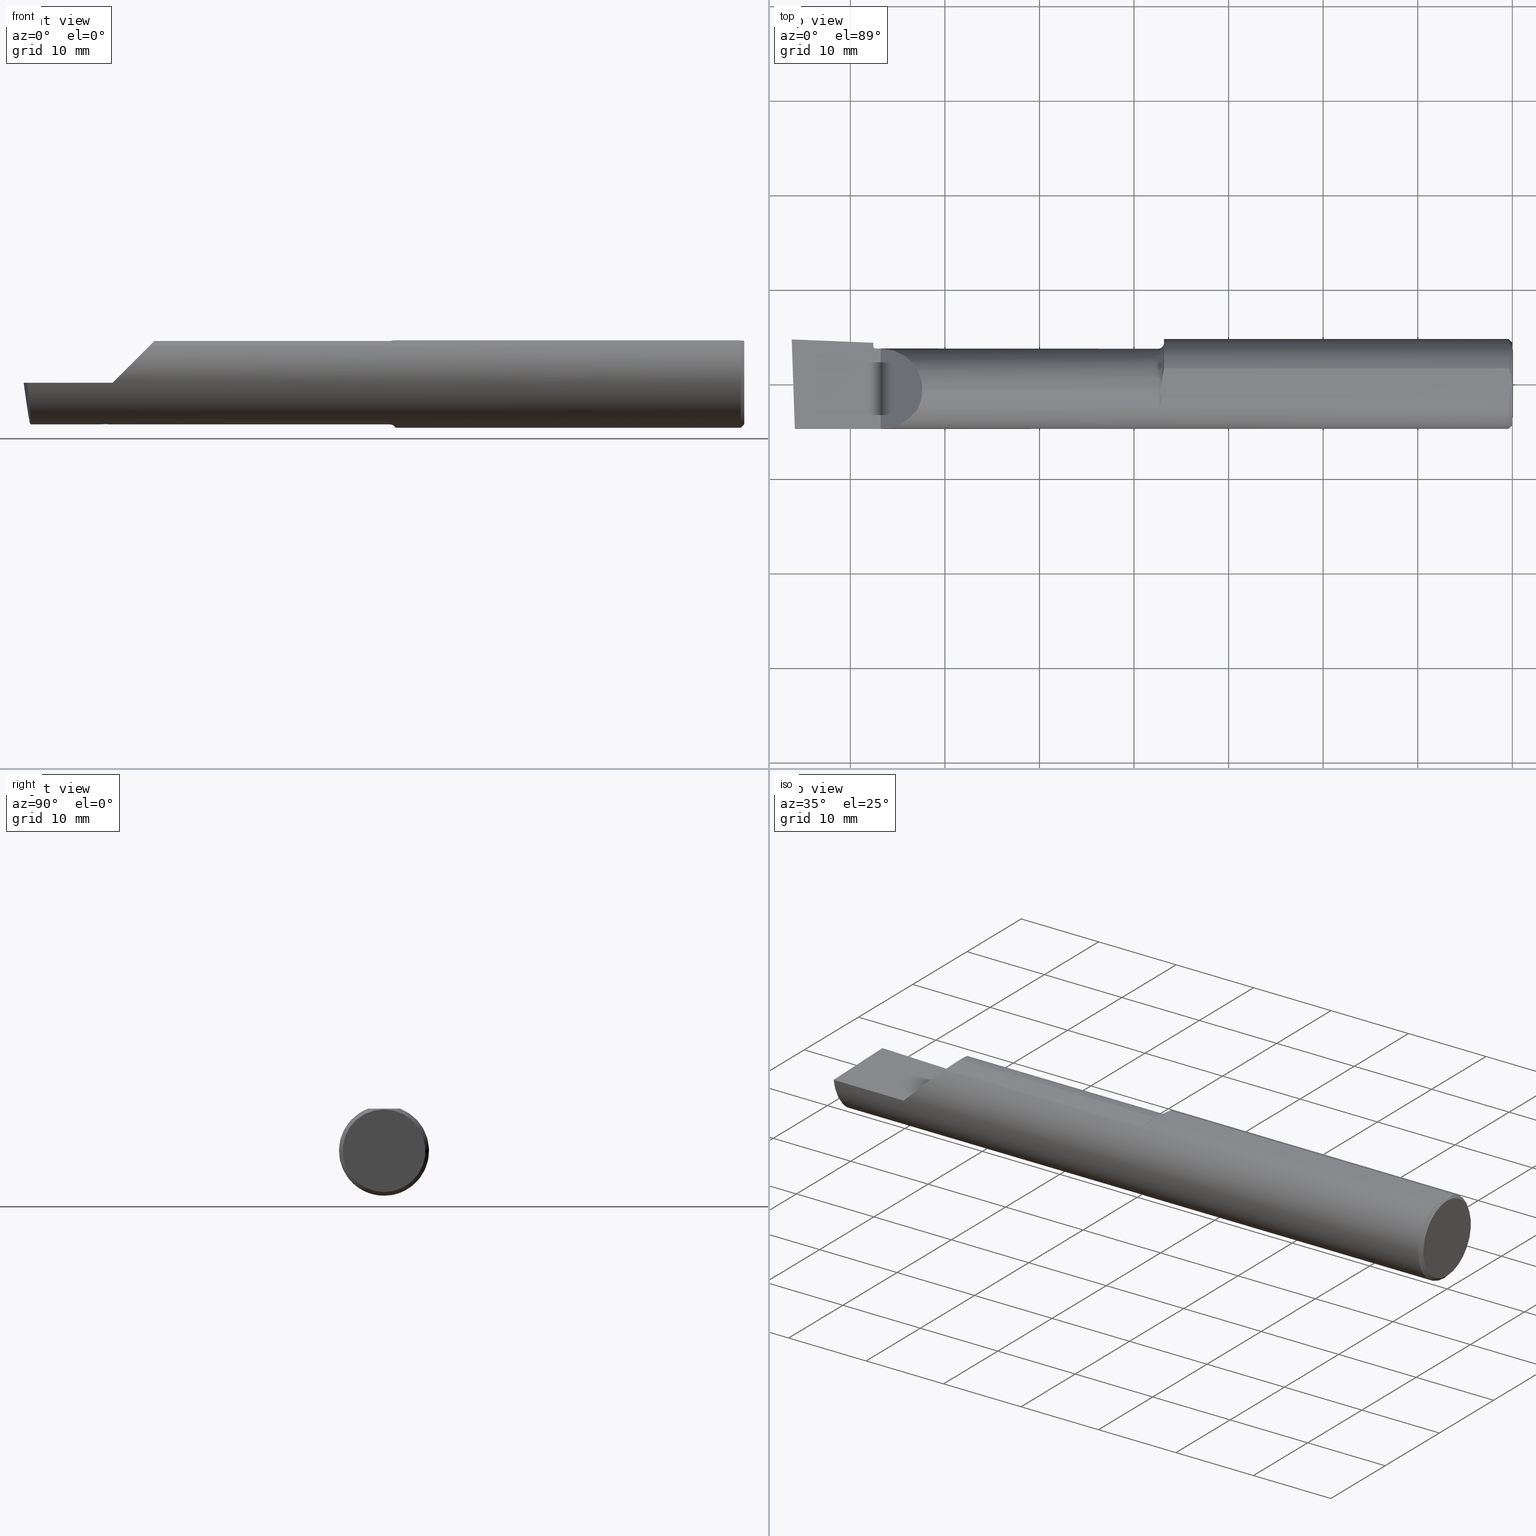
[diagram: canonical four-view strip — front | top / right | iso, engineering-drawing reading convention]
A machine part, canonical four-view strip (front | top / right | iso — engineering-drawing reading convention). The complete STEP part file that produces these views, byte-faithful:
ISO-10303-21;
HEADER;
FILE_DESCRIPTION (( 'STEP AP203' ),
    '1' );
FILE_NAME ('210501-LHBB3714L.STEP',
    '2024-09-03T21:27:12',
    ( '' ),
    ( '' ),
    'SwSTEP 2.0',
    'SolidWorks 2024',
    '' );
FILE_SCHEMA (( 'CONFIG_CONTROL_DESIGN' ));
ENDSEC;

DATA;
#1 = VERTEX_POINT ( 'NONE', #475 ) ;
#2 = DIRECTION ( 'NONE',  ( -0.000000000000000000, -0.000000000000000000, -1.000000000000000000 ) ) ;
#3 = CARTESIAN_POINT ( 'NONE',  ( -2.704451211261551080, -0.01086540527187029349, -0.1729892093236317097 ) ) ;
#4 = VERTEX_POINT ( 'NONE', #611 ) ;
#5 = DIRECTION ( 'NONE',  ( 0.000000000000000000, 0.000000000000000000, 1.000000000000000000 ) ) ;
#6 = AXIS2_PLACEMENT_3D ( 'NONE', #394, #50, #46 ) ;
#7 = CARTESIAN_POINT ( 'NONE',  ( -1.450711316335412837, 0.04736358154393026376, 0.1753499999999999504 ) ) ;
#8 = DIRECTION ( 'NONE',  ( 0.000000000000000000, 0.000000000000000000, 1.000000000000000000 ) ) ;
#9 = EDGE_CURVE ( 'NONE', #211, #100, #341, .T. ) ;
#10 = CARTESIAN_POINT ( 'NONE',  ( -2.704451211261551080, -0.01086540527187029349, -0.1729892093236317097 ) ) ;
#11 = EDGE_CURVE ( 'NONE', #226, #4, #114, .T. ) ;
#12 = CARTESIAN_POINT ( 'NONE',  ( -1.456973559773167448, -0.05611254490776137333, -0.1789163321174483956 ) ) ;
#13 = CARTESIAN_POINT ( 'NONE',  ( -1.451877184496278561, 5.346707327247464941E-17, -0.1873499999999999888 ) ) ;
#14 = ORIENTED_EDGE ( 'NONE', *, *, #556, .F. ) ;
#15 = FACE_OUTER_BOUND ( 'NONE', #546, .T. ) ;
#16 = TOROIDAL_SURFACE ( 'NONE', #336, 0.1986500000000000210, 0.02499999999999994588 ) ;
#17 = ADVANCED_FACE ( 'NONE', ( #413 ), #420, .T. ) ;
#18 = CARTESIAN_POINT ( 'NONE',  ( -2.649999999999999467, 0.08394431857627707161, -0.1344119388774603907 ) ) ;
#19 = CARTESIAN_POINT ( 'NONE',  ( -0.01500000000000298143, 0.000000000000000000, -0.1873499999999999888 ) ) ;
#20 = ORIENTED_EDGE ( 'NONE', *, *, #488, .F. ) ;
#21 = CARTESIAN_POINT ( 'NONE',  ( 2.999999224601709091, 0.06250000000000000000, 0.1753499999999999781 ) ) ;
#22 = VECTOR ( 'NONE', #869, 39.37007874015748854 ) ;
#23 = DIRECTION ( 'NONE',  ( -1.000000000000000000, 0.000000000000000000, 0.000000000000000000 ) ) ;
#24 = CARTESIAN_POINT ( 'NONE',  ( -2.704451211261551080, -0.01086540527187029349, -0.1729892093236317097 ) ) ;
#25 = VERTEX_POINT ( 'NONE', #830 ) ;
#26 = B_SPLINE_CURVE_WITH_KNOTS ( 'NONE', 3,
 ( #812, #327, #392, #737, #742, #734 ),
 .UNSPECIFIED., .F., .F.,
 ( 4, 2, 4 ),
 ( 0.003674022647267963498, 0.004474057480039182917, 0.005274092312810401903 ),
 .UNSPECIFIED. ) ;
#27 = FACE_OUTER_BOUND ( 'NONE', #625, .T. ) ;
#28 = CARTESIAN_POINT ( 'NONE',  ( -2.970333778789824741, -0.05480052201025344821, -0.1736500000000001098 ) ) ;
#29 = TOROIDAL_SURFACE ( 'NONE', #521, 0.1986500000000000210, 0.02499999999999994588 ) ;
#30 = ORIENTED_EDGE ( 'NONE', *, *, #883, .F. ) ;
#31 = CALENDAR_DATE ( 2024, 3, 9 ) ;
#32 = CARTESIAN_POINT ( 'NONE',  ( -0.01500000000000269174, 0.06250000000000000000, 0.1766175883087527931 ) ) ;
#33 = CARTESIAN_POINT ( 'NONE',  ( -1.451877184496278561, 5.346707327247464941E-17, -0.1873499999999999888 ) ) ;
#34 = ORIENTED_EDGE ( 'NONE', *, *, #651, .T. ) ;
#35 = CARTESIAN_POINT ( 'NONE',  ( 0.000000000000000000, 0.000000000000000000, 0.000000000000000000 ) ) ;
#36 =( BOUNDED_CURVE ( )  B_SPLINE_CURVE ( 3, ( #829, #579, #574, #632 ),
 .UNSPECIFIED., .F., .F. ) 
 B_SPLINE_CURVE_WITH_KNOTS ( ( 4, 4 ),
 ( 3.814213940779401568, 4.804695052999731431 ),
 .UNSPECIFIED. ) 
 CURVE ( )  GEOMETRIC_REPRESENTATION_ITEM ( )  RATIONAL_B_SPLINE_CURVE ( ( 1.000000000000000000, 0.9199029417402601050, 0.9199029417402601050, 1.000000000000000000 ) ) 
 REPRESENTATION_ITEM ( '' )  );
#37 = CARTESIAN_POINT ( 'NONE',  ( -2.630000000000001670, 0.1873499999999999888, 3.826894855694929702E-18 ) ) ;
#38 = CARTESIAN_POINT ( 'NONE',  ( -1.460884246882312887, -0.07961094080654303184, 0.1698357184336610481 ) ) ;
#39 = EDGE_LOOP ( 'NONE', ( #505, #758, #756 ) ) ;
#40 =( NAMED_UNIT ( * ) SI_UNIT ( $, .STERADIAN. ) SOLID_ANGLE_UNIT ( ) );
#41 = EDGE_CURVE ( 'NONE', #4, #281, #890, .T. ) ;
#42 = CC_DESIGN_APPROVAL ( #368, ( #755 ) ) ;
#43 = DIRECTION ( 'NONE',  ( 1.000000000000000000, -0.000000000000000000, -0.000000000000000000 ) ) ;
#44 = LINE ( 'NONE', #876, #302 ) ;
#45 = VERTEX_POINT ( 'NONE', #895 ) ;
#46 = DIRECTION ( 'NONE',  ( 0.000000000000000000, 0.000000000000000000, 1.000000000000000000 ) ) ;
#47 = CARTESIAN_POINT ( 'NONE',  ( -2.999406346865630013, 0.1684827509442838045, 3.826894855694929702E-18 ) ) ;
#48 = VERTEX_POINT ( 'NONE', #700 ) ;
#49 = ADVANCED_FACE ( 'NONE', ( #76 ), #353, .T. ) ;
#50 = DIRECTION ( 'NONE',  ( -1.000000000000000000, 0.000000000000000000, 0.000000000000000000 ) ) ;
#51 = CARTESIAN_POINT ( 'NONE',  ( -1.472773221950631095, -0.1075385277173805804, 0.1534150210603234810 ) ) ;
#52 = VERTEX_POINT ( 'NONE', #140 ) ;
#53 = FACE_OUTER_BOUND ( 'NONE', #310, .T. ) ;
#54 = DIRECTION ( 'NONE',  ( 1.000000000000000000, -5.691349986800549142E-18, -0.000000000000000000 ) ) ;
#55 = ORIENTED_EDGE ( 'NONE', *, *, #776, .F. ) ;
#56 = CARTESIAN_POINT ( 'NONE',  ( -1.462504658010091996, -0.05050107467716827975, 0.1753499999999999504 ) ) ;
#57 = CIRCLE ( 'NONE', #145, 0.1836500000000001465 ) ;
#58 = VERTEX_POINT ( 'NONE', #695 ) ;
#59 = EDGE_CURVE ( 'NONE', #612, #841, #431, .T. ) ;
#60 = FACE_OUTER_BOUND ( 'NONE', #837, .T. ) ;
#61 = CARTESIAN_POINT ( 'NONE',  ( -0.01500000000000298143, 0.000000000000000000, 0.000000000000000000 ) ) ;
#62 =( GEOMETRIC_REPRESENTATION_CONTEXT ( 3 ) GLOBAL_UNCERTAINTY_ASSIGNED_CONTEXT ( ( #641 ) ) GLOBAL_UNIT_ASSIGNED_CONTEXT ( ( #861, #586, #40 ) ) REPRESENTATION_CONTEXT ( 'NONE', 'WORKASPACE' ) );
#63 = ORIENTED_EDGE ( 'NONE', *, *, #109, .T. ) ;
#64 = CARTESIAN_POINT ( 'NONE',  ( -1.465938543163486152, -0.03214875271251414757, 0.1753499999999999781 ) ) ;
#65 = AXIS2_PLACEMENT_3D ( 'NONE', #234, #289, #504 ) ;
#66 = EDGE_LOOP ( 'NONE', ( #767, #328, #485, #350 ) ) ;
#67 = CARTESIAN_POINT ( 'NONE',  ( -0.01380550623068044561, -0.06250000000000001388, 0.1753499999999999781 ) ) ;
#68 = CIRCLE ( 'NONE', #856, 0.1723499999999953958 ) ;
#69 = CARTESIAN_POINT ( 'NONE',  ( -3.000000000000000444, -0.01086540527187029349, -0.1729892093236317097 ) ) ;
#70 = ORIENTED_EDGE ( 'NONE', *, *, #400, .T. ) ;
#71 = ORIENTED_EDGE ( 'NONE', *, *, #200, .F. ) ;
#72 = CARTESIAN_POINT ( 'NONE',  ( -2.708804220361200166, -0.006921258992457698066, -0.1726441412368951989 ) ) ;
#73 = EDGE_CURVE ( 'NONE', #332, #176, #744, .T. ) ;
#74 = LINE ( 'NONE', #69, #131 ) ;
#75 = ADVANCED_FACE ( 'NONE', ( #216 ), #156, .T. ) ;
#76 = FACE_OUTER_BOUND ( 'NONE', #159, .T. ) ;
#77 = CARTESIAN_POINT ( 'NONE',  ( -2.649999999999999467, 0.2533590300000000406, 0.04000000000000000083 ) ) ;
#78 = VECTOR ( 'NONE', #603, 39.37007874015748143 ) ;
#79 = CARTESIAN_POINT ( 'NONE',  ( -1.473990841715212996, -0.1081096153846148461, -0.1530108936036602696 ) ) ;
#80 = APPROVAL_PERSON_ORGANIZATION ( #321, #497, #186 ) ;
#81 = CARTESIAN_POINT ( 'NONE',  ( -2.971937602224366426, -0.01086540527187029349, -0.1729892093236317097 ) ) ;
#82 = ORIENTED_EDGE ( 'NONE', *, *, #881, .F. ) ;
#83 = CARTESIAN_POINT ( 'NONE',  ( -2.746058319639013590, 0.009459182972053946023, -0.1712110382614561443 ) ) ;
#84 = DIRECTION ( 'NONE',  ( 0.000000000000000000, -0.08715574274765115759, 0.9961946980917462113 ) ) ;
#85 = CARTESIAN_POINT ( 'NONE',  ( -2.971507021016712713, -0.02094712277634603811, -0.1736500000000001098 ) ) ;
#86 = ORIENTED_EDGE ( 'NONE', *, *, #175, .F. ) ;
#87 = DIRECTION ( 'NONE',  ( 0.000000000000000000, 0.000000000000000000, 1.000000000000000000 ) ) ;
#88 = DIRECTION ( 'NONE',  ( 0.000000000000000000, 0.000000000000000000, 1.000000000000000000 ) ) ;
#89 = ADVANCED_FACE ( 'NONE', ( #304 ), #359, .T. ) ;
#90 = DIRECTION ( 'NONE',  ( -1.000000000000000000, 5.691349986800549142E-18, 0.000000000000000000 ) ) ;
#91 = ORIENTED_EDGE ( 'NONE', *, *, #264, .F. ) ;
#92 = CONICAL_SURFACE ( 'NONE', #412, 0.1723499999999973664, 0.7853981633974540522 ) ;
#93 = CARTESIAN_POINT ( 'NONE',  ( 0.000000000000000000, -0.02600000000000000921, 0.000000000000000000 ) ) ;
#94 = DIRECTION ( 'NONE',  ( -1.000000000000000000, 0.000000000000000000, 0.000000000000000000 ) ) ;
#95 = VERTEX_POINT ( 'NONE', #229 ) ;
#96 =( LENGTH_UNIT ( ) NAMED_UNIT ( * ) SI_UNIT ( $, .METRE. ) );
#97 = CARTESIAN_POINT ( 'NONE',  ( -2.650404740448926155, 0.08378270407828858346, -0.1345441339464414354 ) ) ;
#98 = CARTESIAN_POINT ( 'NONE',  ( -1.452976572137598676, -0.01744685047681176007, -0.1867357032804827233 ) ) ;
#99 = CIRCLE ( 'NONE', #815, 0.1736500000000000821 ) ;
#100 = VERTEX_POINT ( 'NONE', #643 ) ;
#101 = CARTESIAN_POINT ( 'NONE',  ( -2.971994900024879094, -0.009603485441107924639, -0.1728788056441614707 ) ) ;
#102 = B_SPLINE_CURVE_WITH_KNOTS ( 'NONE', 3,
 ( #189, #873, #255, #880 ),
 .UNSPECIFIED., .F., .F.,
 ( 4, 4 ),
 ( 0.0007377291506397088338, 0.0007699036775510591539 ),
 .UNSPECIFIED. ) ;
#103 = AXIS2_PLACEMENT_3D ( 'NONE', #764, #199, #139 ) ;
#104 = CARTESIAN_POINT ( 'NONE',  ( -1.450000000000000178, 0.07088076923076941371, 0.1734241593701823791 ) ) ;
#105 = DIRECTION ( 'NONE',  ( 1.000000000000000000, -0.000000000000000000, -0.000000000000000000 ) ) ;
#106 = EDGE_CURVE ( 'NONE', #561, #256, #692, .T. ) ;
#107 = ORIENTED_EDGE ( 'NONE', *, *, #519, .F. ) ;
#108 = COORDINATED_UNIVERSAL_TIME_OFFSET ( 8, 0, .BEHIND. ) ;
#109 = EDGE_CURVE ( 'NONE', #675, #48, #509, .T. ) ;
#110 = FACE_OUTER_BOUND ( 'NONE', #263, .T. ) ;
#111 = VECTOR ( 'NONE', #160, 39.37007874015748143 ) ;
#112 = FACE_OUTER_BOUND ( 'NONE', #566, .T. ) ;
#113 = VERTEX_POINT ( 'NONE', #704 ) ;
#114 = CIRCLE ( 'NONE', #616, 0.1873499999999999888 ) ;
#115 = CARTESIAN_POINT ( 'NONE',  ( -2.660000000000000586, -0.03734999999999999432, 0.04000000000000000083 ) ) ;
#116 = DIRECTION ( 'NONE',  ( 0.000000000000000000, -1.000000000000000000, 0.000000000000000000 ) ) ;
#117 = VERTEX_POINT ( 'NONE', #13 ) ;
#118 = PERSON_AND_ORGANIZATION ( #358, #136 ) ;
#119 = FACE_OUTER_BOUND ( 'NONE', #193, .T. ) ;
#120 = CARTESIAN_POINT ( 'NONE',  ( -1.457967682101993345, -0.06250000000000000000, 0.1766175883087504339 ) ) ;
#121 = ORIENTED_EDGE ( 'NONE', *, *, #59, .T. ) ;
#122 = CARTESIAN_POINT ( 'NONE',  ( -2.791040461261798722, 0.02116954119372158397, -0.1701865146712327748 ) ) ;
#123 = CARTESIAN_POINT ( 'NONE',  ( -1.457967682101993345, -0.06250000000000000000, 0.1766175883087504339 ) ) ;
#124 = CIRCLE ( 'NONE', #628, 0.1736500000000001376 ) ;
#125 = VERTEX_POINT ( 'NONE', #150 ) ;
#126 =( BOUNDED_CURVE ( )  B_SPLINE_CURVE ( 3, ( #148, #835, #557, #217 ),
 .UNSPECIFIED., .F., .F. ) 
 B_SPLINE_CURVE_WITH_KNOTS ( ( 4, 4 ),
 ( 4.712388980384689674, 6.283185307179586232 ),
 .UNSPECIFIED. ) 
 CURVE ( )  GEOMETRIC_REPRESENTATION_ITEM ( )  RATIONAL_B_SPLINE_CURVE ( ( 1.000000000000000000, 0.8047378541243649375, 0.8047378541243649375, 1.000000000000000000 ) ) 
 REPRESENTATION_ITEM ( '' )  );
#127 = CARTESIAN_POINT ( 'NONE',  ( -1.474999999999999867, -0.02600000000000000921, 0.1986500000000000210 ) ) ;
#128 = ORIENTED_EDGE ( 'NONE', *, *, #334, .F. ) ;
#129 = PERSON_AND_ORGANIZATION ( #358, #136 ) ;
#130 = FACE_OUTER_BOUND ( 'NONE', #644, .T. ) ;
#131 = VECTOR ( 'NONE', #403, 39.37007874015748143 ) ;
#132 = ORIENTED_EDGE ( 'NONE', *, *, #409, .F. ) ;
#133 = VERTEX_POINT ( 'NONE', #24 ) ;
#134 = DIRECTION ( 'NONE',  ( 1.000000000000000000, -0.000000000000000000, -0.000000000000000000 ) ) ;
#135 = ORIENTED_EDGE ( 'NONE', *, *, #109, .F. ) ;
#136 = ORGANIZATION ( 'UNSPECIFIED', 'UNSPECIFIED', '' ) ;
#137 = VERTEX_POINT ( 'NONE', #298 ) ;
#138 = DIRECTION ( 'NONE',  ( 0.000000000000000000, 0.000000000000000000, -1.000000000000000000 ) ) ;
#139 = DIRECTION ( 'NONE',  ( 3.061616997868383634E-16, -1.000000000000000000, 0.000000000000000000 ) ) ;
#140 = CARTESIAN_POINT ( 'NONE',  ( -1.450099871930967455, 0.06249999999999519135, 0.1753499999999999781 ) ) ;
#141 = CARTESIAN_POINT ( 'NONE',  ( -1.459407318642379270, -0.06250000000000001388, 0.1753499999999999781 ) ) ;
#142 = EDGE_CURVE ( 'NONE', #841, #612, #223, .T. ) ;
#143 = CIRCLE ( 'NONE', #213, 0.1723499999999953958 ) ;
#144 = CARTESIAN_POINT ( 'NONE',  ( -1.465025125859598321, -0.03837641554166927593, 0.1753499999999999781 ) ) ;
#145 = AXIS2_PLACEMENT_3D ( 'NONE', #207, #419, #539 ) ;
#146 = DIRECTION ( 'NONE',  ( -1.000000000000000000, 0.000000000000000000, 0.000000000000000000 ) ) ;
#147 = ORIENTED_EDGE ( 'NONE', *, *, #490, .F. ) ;
#148 = CARTESIAN_POINT ( 'NONE',  ( -2.630000000000001670, 0.1476500000000000867, 3.826894855694929702E-18 ) ) ;
#149 = DIRECTION ( 'NONE',  ( 0.000000000000000000, -0.9961946980917462113, -0.08715574274765115759 ) ) ;
#150 = CARTESIAN_POINT ( 'NONE',  ( -2.630000000000001670, -0.1873499999999999888, 3.826894855694929702E-18 ) ) ;
#151 = ORIENTED_EDGE ( 'NONE', *, *, #844, .T. ) ;
#152 = CARTESIAN_POINT ( 'NONE',  ( -1.458431471328327733, -0.06250000000000000000, 0.1761768119732479154 ) ) ;
#153 = AXIS2_PLACEMENT_3D ( 'NONE', #376, #741, #663 ) ;
#154 = CARTESIAN_POINT ( 'NONE',  ( -1.453714973573323466, -0.02600000000000000921, -0.1855371189277228716 ) ) ;
#155 = DIMENSIONAL_EXPONENTS ( 1.000000000000000000, 0.000000000000000000, 0.000000000000000000, 0.000000000000000000, 0.000000000000000000, 0.000000000000000000, 0.000000000000000000 ) ;
#156 = CONICAL_SURFACE ( 'NONE', #271, 0.2124425478614826446, 0.04014257279587014893 ) ;
#157 = CC_DESIGN_APPROVAL ( #497, ( #502 ) ) ;
#158 = CARTESIAN_POINT ( 'NONE',  ( -2.970228340989529592, -0.08273216874458717840, -0.1666290898900873452 ) ) ;
#159 = EDGE_LOOP ( 'NONE', ( #747, #572 ) ) ;
#160 = DIRECTION ( 'NONE',  ( -1.000000000000000000, -0.000000000000000000, -0.000000000000000000 ) ) ;
#161 = CARTESIAN_POINT ( 'NONE',  ( -2.656918415407419243, 0.1050338651400297418, -0.1181966594076997584 ) ) ;
#162 = DIRECTION ( 'NONE',  ( 0.000000000000000000, 0.000000000000000000, 1.000000000000000000 ) ) ;
#163 = VERTEX_POINT ( 'NONE', #565 ) ;
#164 = CARTESIAN_POINT ( 'NONE',  ( -0.01460175061583534467, -0.06250000000000000000, 0.1761951387507092182 ) ) ;
#165 = CARTESIAN_POINT ( 'NONE',  ( -1.453714973573323466, -0.02600000000000000921, -0.1855371189277228716 ) ) ;
#166 = ORIENTED_EDGE ( 'NONE', *, *, #334, .T. ) ;
#167 = APPROVAL_DATE_TIME ( #594, #368 ) ;
#168 = CARTESIAN_POINT ( 'NONE',  ( -1.461255037086692798, 0.003590745287381353311, 0.1753500000000000059 ) ) ;
#169 = DIRECTION ( 'NONE',  ( 1.000000000000000000, -0.000000000000000000, -0.000000000000000000 ) ) ;
#170 = ORIENTED_EDGE ( 'NONE', *, *, #718, .T. ) ;
#171 = ADVANCED_FACE ( 'NONE', ( #294 ), #647, .T. ) ;
#172 = DIRECTION ( 'NONE',  ( 0.7071067811865436870, 0.000000000000000000, -0.7071067811865513475 ) ) ;
#173 = EDGE_CURVE ( 'NONE', #499, #448, #143, .T. ) ;
#174 = CARTESIAN_POINT ( 'NONE',  ( -2.660000000000000142, 0.1413725635612766984, -0.07558933434636423698 ) ) ;
#175 = EDGE_CURVE ( 'NONE', #244, #332, #346, .T. ) ;
#176 = VERTEX_POINT ( 'NONE', #708 ) ;
#177 = DATE_AND_TIME ( #31, #247 ) ;
#178 = AXIS2_PLACEMENT_3D ( 'NONE', #127, #559, #441 ) ;
#179 = CARTESIAN_POINT ( 'NONE',  ( -1.450131522081296032, 0.04788091684906111561, -0.1815294061537139347 ) ) ;
#180 = CARTESIAN_POINT ( 'NONE',  ( -2.649999999999999467, -0.02600000000000000921, 0.000000000000000000 ) ) ;
#181 = CC_DESIGN_PERSON_AND_ORGANIZATION_ASSIGNMENT ( #506, #440, ( #246 ) ) ;
#182 = VERTEX_POINT ( 'NONE', #846 ) ;
#183 = CARTESIAN_POINT ( 'NONE',  ( 2.999999224601709091, -0.06250000000000000000, 0.1753499999999999781 ) ) ;
#184 = PLANE ( 'NONE',  #377 ) ;
#185 = ORIENTED_EDGE ( 'NONE', *, *, #720, .F. ) ;
#186 = APPROVAL_ROLE ( '' ) ;
#187 = VECTOR ( 'NONE', #484, 39.37007874015748143 ) ;
#188 = LINE ( 'NONE', #673, #78 ) ;
#189 = CARTESIAN_POINT ( 'NONE',  ( -1.450024209494725991, 0.06250000000000000000, 0.1766175883096191834 ) ) ;
#190 = ORIENTED_EDGE ( 'NONE', *, *, #881, .T. ) ;
#191 = CARTESIAN_POINT ( 'NONE',  ( -2.650000000000000355, -0.02600000000000000921, 0.000000000000000000 ) ) ;
#192 = FACE_OUTER_BOUND ( 'NONE', #230, .T. ) ;
#193 = EDGE_LOOP ( 'NONE', ( #472, #393, #735, #14 ) ) ;
#194 = B_SPLINE_CURVE_WITH_KNOTS ( 'NONE', 3,
 ( #446, #627, #164, #787 ),
 .UNSPECIFIED., .F., .F.,
 ( 4, 4 ),
 ( 0.0006684116864611353796, 0.0007126514243606292282 ),
 .UNSPECIFIED. ) ;
#195 = CARTESIAN_POINT ( 'NONE',  ( -2.630000000000001670, -0.1873499999999999888, 3.826894855694929702E-18 ) ) ;
#196 = AXIS2_PLACEMENT_3D ( 'NONE', #115, #870, #242 ) ;
#197 = ORIENTED_EDGE ( 'NONE', *, *, #173, .F. ) ;
#198 = PERSON_AND_ORGANIZATION_ROLE ( 'classification_officer' ) ;
#199 = DIRECTION ( 'NONE',  ( -1.000000000000000000, -3.061616997868383634E-16, 0.000000000000000000 ) ) ;
#200 = EDGE_CURVE ( 'NONE', #332, #137, #370, .T. ) ;
#201 = ORIENTED_EDGE ( 'NONE', *, *, #331, .F. ) ;
#202 = CARTESIAN_POINT ( 'NONE',  ( -2.660000000000000586, 0.2178709999999999536, 0.000000000000000000 ) ) ;
#203 = EDGE_LOOP ( 'NONE', ( #639, #435, #30, #360 ) ) ;
#204 = CC_DESIGN_PERSON_AND_ORGANIZATION_ASSIGNMENT ( #129, #198, ( #502 ) ) ;
#205 = DIRECTION ( 'NONE',  ( -1.000000000000000000, 0.000000000000000000, 0.000000000000000000 ) ) ;
#206 = B_SPLINE_CURVE_WITH_KNOTS ( 'NONE', 3,
 ( #120, #596, #38, #461, #516, #313, #598, #592, #796, #51, #677, #395 ),
 .UNSPECIFIED., .F., .F.,
 ( 4, 2, 2, 2, 2, 4 ),
 ( 6.052127593279596763E-07, 0.0007095659345339961959, 0.001064046295421333362, 0.001241286475864999180, 0.001329906566086831764, 0.001418526656308664565 ),
 .UNSPECIFIED. ) ;
#207 = CARTESIAN_POINT ( 'NONE',  ( -2.660000000000000142, -0.02600000000000000921, 0.000000000000000000 ) ) ;
#208 = DIRECTION ( 'NONE',  ( 0.000000000000000000, 0.000000000000000000, -1.000000000000000000 ) ) ;
#209 = DIRECTION ( 'NONE',  ( -1.000000000000000000, 5.691349986800549142E-18, 0.000000000000000000 ) ) ;
#210 = FACE_OUTER_BOUND ( 'NONE', #476, .T. ) ;
#211 = VERTEX_POINT ( 'NONE', #364 ) ;
#212 = CARTESIAN_POINT ( 'NONE',  ( -2.463370910109909939, -0.08273216874457642311, 0.1666290898900900375 ) ) ;
#213 = AXIS2_PLACEMENT_3D ( 'NONE', #580, #792, #438 ) ;
#214 = CARTESIAN_POINT ( 'NONE',  ( -1.470962250959480411, -0.1059577229162207146, -0.1545110620167398086 ) ) ;
#215 = AXIS2_PLACEMENT_3D ( 'NONE', #352, #886, #261 ) ;
#216 = FACE_OUTER_BOUND ( 'NONE', #786, .T. ) ;
#217 = CARTESIAN_POINT ( 'NONE',  ( -2.456350000000000033, -0.02600000000000000921, 0.1736500000000001098 ) ) ;
#218 = CARTESIAN_POINT ( 'NONE',  ( -2.653426885027506010, 0.08859968094091107138, -0.1312597089575441855 ) ) ;
#219 = DIRECTION ( 'NONE',  ( 0.000000000000000000, -1.000000000000000000, 0.000000000000000000 ) ) ;
#220 = ORIENTED_EDGE ( 'NONE', *, *, #361, .F. ) ;
#221 = CARTESIAN_POINT ( 'NONE',  ( -2.660000000000000586, 0.1873499999999999888, 3.826894855694929702E-18 ) ) ;
#222 = CARTESIAN_POINT ( 'NONE',  ( -1.458043122508910994, -0.06351921404920812808, -0.1764218323618861883 ) ) ;
#223 = CIRCLE ( 'NONE', #65, 0.1873499999999999888 ) ;
#224 = LOCAL_TIME ( 14, 27, 12.00000000000000000, #810 ) ;
#225 = CARTESIAN_POINT ( 'NONE',  ( -2.649999999999999467, -0.03734999999999999432, 0.04000000000000000083 ) ) ;
#226 = VERTEX_POINT ( 'NONE', #19 ) ;
#227 = CARTESIAN_POINT ( 'NONE',  ( -2.660000000000000142, 0.1413725635612766984, -0.07558933434636423698 ) ) ;
#228 = EDGE_CURVE ( 'NONE', #448, #499, #68, .T. ) ;
#229 = CARTESIAN_POINT ( 'NONE',  ( -2.649999999999999467, 0.08394431857627707161, -0.1344119388774603907 ) ) ;
#230 = EDGE_LOOP ( 'NONE', ( #366, #523, #599, #576, #278, #672 ) ) ;
#231 = DATE_AND_TIME ( #798, #872 ) ;
#232 = CARTESIAN_POINT ( 'NONE',  ( -1.465102689005152836, -0.09457517144669681797, -0.1617708990962193616 ) ) ;
#233 = EDGE_CURVE ( 'NONE', #125, #463, #723, .T. ) ;
#234 = CARTESIAN_POINT ( 'NONE',  ( -1.450000000000000178, 0.000000000000000000, 0.000000000000000000 ) ) ;
#235 = ORIENTED_EDGE ( 'NONE', *, *, #507, .F. ) ;
#236 = EDGE_CURVE ( 'NONE', #561, #117, #719, .T. ) ;
#237 = EDGE_CURVE ( 'NONE', #137, #605, #307, .T. ) ;
#238 = CARTESIAN_POINT ( 'NONE',  ( -2.630000000000001670, 0.1873499999999999888, 3.826894855694929702E-18 ) ) ;
#239 = CARTESIAN_POINT ( 'NONE',  ( -2.999999224601709091, 0.1855899827131189117, 3.826894855694929702E-18 ) ) ;
#240 = ORIENTED_EDGE ( 'NONE', *, *, #237, .T. ) ;
#241 = COORDINATED_UNIVERSAL_TIME_OFFSET ( 8, 0, .BEHIND. ) ;
#242 = DIRECTION ( 'NONE',  ( 0.000000000000000000, 0.000000000000000000, -1.000000000000000000 ) ) ;
#243 = CARTESIAN_POINT ( 'NONE',  ( -2.773332866622927551, 0.1763362796973901025, 3.826894855694929702E-18 ) ) ;
#244 = VERTEX_POINT ( 'NONE', #654 ) ;
#245 = DIRECTION ( 'NONE',  ( -0.9919506264397696116, -0.03437759245050123202, -0.1218693392246628510 ) ) ;
#246 = PRODUCT ( '210501-LHBB3714L', '210501-LHBB3714L', '', ( #717 ) ) ;
#247 = LOCAL_TIME ( 14, 27, 12.00000000000000000, #582 ) ;
#248 = DIRECTION ( 'NONE',  ( 0.000000000000000000, 1.000000000000000000, 0.000000000000000000 ) ) ;
#249 = DIRECTION ( 'NONE',  ( 1.000000000000000000, 0.000000000000000000, -0.000000000000000000 ) ) ;
#250 = B_SPLINE_CURVE_WITH_KNOTS ( 'NONE', 3,
 ( #750, #64, #144, #56, #343, #549 ),
 .UNSPECIFIED., .F., .F.,
 ( 4, 2, 4 ),
 ( 0.0006644601313690796408, 0.001130209228202316060, 0.001595958325035552261 ),
 .UNSPECIFIED. ) ;
#251 = ORIENTED_EDGE ( 'NONE', *, *, #303, .F. ) ;
#252 = EDGE_CURVE ( 'NONE', #45, #256, #44, .T. ) ;
#253 = DIRECTION ( 'NONE',  ( 0.000000000000000000, 1.000000000000000000, 0.000000000000000000 ) ) ;
#254 = CIRCLE ( 'NONE', #602, 0.009999999999999620304 ) ;
#255 = CARTESIAN_POINT ( 'NONE',  ( -1.450066142798718483, 0.06250000000000000000, 0.1757714138640422141 ) ) ;
#256 = VERTEX_POINT ( 'NONE', #401 ) ;
#257 = CARTESIAN_POINT ( 'NONE',  ( -1.459407318642379270, -0.06250000000000001388, 0.1753499999999999781 ) ) ;
#258 = DIRECTION ( 'NONE',  ( -1.000000000000000000, 0.000000000000000000, 0.000000000000000000 ) ) ;
#259 = ORIENTED_EDGE ( 'NONE', *, *, #236, .T. ) ;
#260 = VECTOR ( 'NONE', #134, 39.37007874015748143 ) ;
#261 = DIRECTION ( 'NONE',  ( 0.000000000000000000, 0.000000000000000000, 1.000000000000000000 ) ) ;
#262 = B_SPLINE_CURVE_WITH_KNOTS ( 'NONE', 3,
 ( #529, #243, #525, #746 ),
 .UNSPECIFIED., .F., .F.,
 ( 4, 4 ),
 ( 0.01328888276127578559, 0.02193206484020570474 ),
 .UNSPECIFIED. ) ;
#263 = EDGE_LOOP ( 'NONE', ( #725, #555, #593, #813, #535, #290 ) ) ;
#264 = EDGE_CURVE ( 'NONE', #95, #605, #487, .T. ) ;
#265 = EDGE_CURVE ( 'NONE', #211, #52, #102, .T. ) ;
#266 = LINE ( 'NONE', #681, #260 ) ;
#267 = EDGE_CURVE ( 'NONE', #385, #305, #262, .T. ) ;
#268 = CIRCLE ( 'NONE', #153, 0.1736500000000001098 ) ;
#269 = CARTESIAN_POINT ( 'NONE',  ( -1.450000000000000178, 0.1726499999999999979, 0.000000000000000000 ) ) ;
#270 = ORIENTED_EDGE ( 'NONE', *, *, #333, .T. ) ;
#271 = AXIS2_PLACEMENT_3D ( 'NONE', #225, #90, #859 ) ;
#272 = CC_DESIGN_PERSON_AND_ORGANIZATION_ASSIGNMENT ( #473, #339, ( #755 ) ) ;
#273 = CARTESIAN_POINT ( 'NONE',  ( 0.000000000000000000, 0.000000000000000000, 0.1723499999999973664 ) ) ;
#274 = DIRECTION ( 'NONE',  ( -1.000000000000000000, 0.000000000000000000, 0.000000000000000000 ) ) ;
#275 = ORIENTED_EDGE ( 'NONE', *, *, #41, .T. ) ;
#276 = CARTESIAN_POINT ( 'NONE',  ( -0.003996100475016051493, -0.02135442970274195953, 0.1753499999999999781 ) ) ;
#277 = DIRECTION ( 'NONE',  ( -0.7071067811865434649, 0.000000000000000000, 0.7071067811865516806 ) ) ;
#278 = ORIENTED_EDGE ( 'NONE', *, *, #317, .T. ) ;
#279 = CARTESIAN_POINT ( 'NONE',  ( -2.456350000000000033, -0.02600000000000000921, 0.1736500000000001098 ) ) ;
#280 = DIRECTION ( 'NONE',  ( 0.000000000000000000, 0.000000000000000000, 1.000000000000000000 ) ) ;
#281 = VERTEX_POINT ( 'NONE', #123 ) ;
#282 = ORIENTED_EDGE ( 'NONE', *, *, #823, .F. ) ;
#283 = CARTESIAN_POINT ( 'NONE',  ( -2.724129380276514301, 0.001455256644210098501, -0.1719112910788392901 ) ) ;
#284 = CARTESIAN_POINT ( 'NONE',  ( -1.464608314111827347, -0.01109382646203976863, 0.1753499999999999781 ) ) ;
#285 = ORIENTED_EDGE ( 'NONE', *, *, #442, .T. ) ;
#286 = CARTESIAN_POINT ( 'NONE',  ( -2.716295896648328601, -0.002371310720510865552, -0.1722460723434705021 ) ) ;
#287 = CARTESIAN_POINT ( 'NONE',  ( -3.000000000000000444, -0.01086540527187029349, -0.1729892093236317097 ) ) ;
#288 = AXIS2_PLACEMENT_3D ( 'NONE', #407, #610, #833 ) ;
#289 = DIRECTION ( 'NONE',  ( 1.000000000000000000, -0.000000000000000000, -0.000000000000000000 ) ) ;
#290 = ORIENTED_EDGE ( 'NONE', *, *, #469, .T. ) ;
#291 = CARTESIAN_POINT ( 'NONE',  ( -2.813839021798732798, 0.02570307306636425079, -0.1697898820266431075 ) ) ;
#292 = ADVANCED_FACE ( 'NONE', ( #192 ), #335, .T. ) ;
#293 = CARTESIAN_POINT ( 'NONE',  ( -1.459289810141600530, 0.01083667079915693644, 0.1753499999999999781 ) ) ;
#294 = FACE_OUTER_BOUND ( 'NONE', #514, .T. ) ;
#295 = ORIENTED_EDGE ( 'NONE', *, *, #233, .T. ) ;
#296 = DESIGN_CONTEXT ( 'detailed design', #410, 'design' ) ;
#297 = CARTESIAN_POINT ( 'NONE',  ( -2.660000000000000586, 0.1337036644464353885, -0.08744687567790455918 ) ) ;
#298 = CARTESIAN_POINT ( 'NONE',  ( -2.687563847190622912, -0.02599999999999965533, -0.1736500000000001098 ) ) ;
#299 = ORIENTED_EDGE ( 'NONE', *, *, #554, .F. ) ;
#300 = PERSON_AND_ORGANIZATION ( #358, #136 ) ;
#301 = CARTESIAN_POINT ( 'NONE',  ( -2.652345896986868734, 0.08583061784517090342, -0.1332023532929939857 ) ) ;
#302 = VECTOR ( 'NONE', #105, 39.37007874015748143 ) ;
#303 = EDGE_CURVE ( 'NONE', #305, #463, #456, .T. ) ;
#304 = FACE_OUTER_BOUND ( 'NONE', #203, .T. ) ;
#305 = VERTEX_POINT ( 'NONE', #239 ) ;
#306 = ADVANCED_FACE ( 'NONE', ( #112 ), #184, .T. ) ;
#307 = B_SPLINE_CURVE_WITH_KNOTS ( 'NONE', 3,
 ( #309, #584, #864, #492 ),
 .UNSPECIFIED., .F., .F.,
 ( 4, 4 ),
 ( 0.004143445792891904851, 0.005263963715336056857 ),
 .UNSPECIFIED. ) ;
#308 = DIRECTION ( 'NONE',  ( 0.000000000000000000, 0.000000000000000000, 1.000000000000000000 ) ) ;
#309 = CARTESIAN_POINT ( 'NONE',  ( -2.687563847190622912, -0.02599999999999965533, -0.1736500000000001098 ) ) ;
#310 = EDGE_LOOP ( 'NONE', ( #857, #197, #70, #439, #712, #848 ) ) ;
#311 = AXIS2_PLACEMENT_3D ( 'NONE', #676, #548, #5 ) ;
#312 = CARTESIAN_POINT ( 'NONE',  ( -1.474999999999999867, -0.02600000000000000921, 0.000000000000000000 ) ) ;
#313 = CARTESIAN_POINT ( 'NONE',  ( -1.467781332027255914, -0.1010801460385803430, 0.1577580110644236921 ) ) ;
#314 = VERTEX_POINT ( 'NONE', #660 ) ;
#315 = PERSON_AND_ORGANIZATION_ROLE ( 'creator' ) ;
#316 = CARTESIAN_POINT ( 'NONE',  ( -1.450727058424665650, 0.02420815208666589682, -0.1861705478032860683 ) ) ;
#317 = EDGE_CURVE ( 'NONE', #182, #58, #26, .T. ) ;
#318 =( BOUNDED_CURVE ( )  B_SPLINE_CURVE ( 3, ( #671, #867, #674, #323 ),
 .UNSPECIFIED., .F., .T. ) 
 B_SPLINE_CURVE_WITH_KNOTS ( ( 4, 4 ),
 ( 4.987330662103041767, 5.943019574253066928 ),
 .UNSPECIFIED. ) 
 CURVE ( )  GEOMETRIC_REPRESENTATION_ITEM ( )  RATIONAL_B_SPLINE_CURVE ( ( 1.000000000000000000, 0.9253254977684380878, 0.9253254977684380878, 1.000000000000000000 ) ) 
 REPRESENTATION_ITEM ( '' )  );
#319 = DIRECTION ( 'NONE',  ( 0.000000000000000000, 0.000000000000000000, 1.000000000000000000 ) ) ;
#320 = ORIENTED_EDGE ( 'NONE', *, *, #424, .T. ) ;
#321 = PERSON_AND_ORGANIZATION ( #358, #136 ) ;
#322 = FACE_OUTER_BOUND ( 'NONE', #338, .T. ) ;
#323 = CARTESIAN_POINT ( 'NONE',  ( -2.971021954143098220, -0.1081096153846145408, -0.1530108936036604916 ) ) ;
#324 = ORIENTED_EDGE ( 'NONE', *, *, #303, .T. ) ;
#325 = CARTESIAN_POINT ( 'NONE',  ( -1.450000000000000178, 0.07088076923076941371, 0.1734241593701823791 ) ) ;
#326 = B_SPLINE_CURVE_WITH_KNOTS ( 'NONE', 3,
 ( #3, #752, #477, #623 ),
 .UNSPECIFIED., .F., .F.,
 ( 4, 4 ),
 ( 0.003566293279861831519, 0.004143445792891904851 ),
 .UNSPECIFIED. ) ;
#327 = CARTESIAN_POINT ( 'NONE',  ( -0.01040846277065749989, 0.05238194648023027783, 0.1753500000000000059 ) ) ;
#328 = ORIENTED_EDGE ( 'NONE', *, *, #651, .F. ) ;
#329 = CARTESIAN_POINT ( 'NONE',  ( -0.003000000000002570489, 3.544439008202676413E-26, 0.1753499999999999781 ) ) ;
#330 = CARTESIAN_POINT ( 'NONE',  ( -2.630000000000001670, 0.1476500000000000867, 3.826894855694929702E-18 ) ) ;
#331 = EDGE_CURVE ( 'NONE', #463, #244, #318, .T. ) ;
#332 = VERTEX_POINT ( 'NONE', #520 ) ;
#333 = EDGE_CURVE ( 'NONE', #743, #256, #99, .T. ) ;
#334 = EDGE_CURVE ( 'NONE', #281, #675, #206, .T. ) ;
#335 = CONICAL_SURFACE ( 'NONE', #766, 0.1723499999999973664, 0.7853981633974540522 ) ;
#336 = AXIS2_PLACEMENT_3D ( 'NONE', #312, #800, #652 ) ;
#337 = CARTESIAN_POINT ( 'NONE',  ( -2.512807819182183433, -0.1588049511472809372, 0.1171921808178171820 ) ) ;
#338 = EDGE_LOOP ( 'NONE', ( #865, #530, #20, #738 ) ) ;
#339 = PERSON_AND_ORGANIZATION_ROLE ( 'design_supplier' ) ;
#340 = CARTESIAN_POINT ( 'NONE',  ( -5.805176986536559586E-16, -1.061536189819736218E-31, 0.1723499999999953958 ) ) ;
#341 = LINE ( 'NONE', #344, #187 ) ;
#342 = CLOSED_SHELL ( 'NONE', ( #601, #425, #292, #806, #171, #589, #457, #17, #493, #587, #722, #75, #398, #613, #89, #685, #306, #655, #821, #751, #49, #760, #884, #489 ) ) ;
#343 = CARTESIAN_POINT ( 'NONE',  ( -1.460940418632372451, -0.05649714379789155805, 0.1753500000000000059 ) ) ;
#344 = CARTESIAN_POINT ( 'NONE',  ( -3.000000000000000444, 0.06250000000000000000, 0.1766175883087524878 ) ) ;
#345 = CARTESIAN_POINT ( 'NONE',  ( -1.450000000000000178, 0.07088076923076941371, -0.1734241593701823791 ) ) ;
#346 =( BOUNDED_CURVE ( )  B_SPLINE_CURVE ( 3, ( #777, #158, #28, #575 ),
 .UNSPECIFIED., .F., .T. ) 
 B_SPLINE_CURVE_WITH_KNOTS ( ( 4, 4 ),
 ( 6.065609716100640370, 6.558126988897937437 ),
 .UNSPECIFIED. ) 
 CURVE ( )  GEOMETRIC_REPRESENTATION_ITEM ( )  RATIONAL_B_SPLINE_CURVE ( ( 1.000000000000000000, 0.9798875109367730651, 0.9798875109367730651, 1.000000000000000000 ) ) 
 REPRESENTATION_ITEM ( '' )  );
#347 = AXIS2_PLACEMENT_3D ( 'NONE', #202, #348, #411 ) ;
#348 = DIRECTION ( 'NONE',  ( 1.000000000000000000, 0.000000000000000000, -0.000000000000000000 ) ) ;
#349 = ORIENTED_EDGE ( 'NONE', *, *, #462, .T. ) ;
#350 = ORIENTED_EDGE ( 'NONE', *, *, #783, .F. ) ;
#351 = CARTESIAN_POINT ( 'NONE',  ( -2.713733975700631795, -0.003751042362585716231, -0.1723667832208600204 ) ) ;
#352 = CARTESIAN_POINT ( 'NONE',  ( 0.000000000000000000, -0.02600000000000000921, 0.000000000000000000 ) ) ;
#353 = PLANE ( 'NONE',  #664 ) ;
#354 = VECTOR ( 'NONE', #460, 39.37007874015748143 ) ;
#355 = LINE ( 'NONE', #221, #850 ) ;
#356 = LOCAL_TIME ( 14, 27, 12.00000000000000000, #464 ) ;
#357 = FACE_OUTER_BOUND ( 'NONE', #421, .T. ) ;
#358 = PERSON ( 'UNSPECIFIED', 'UNSPECIFIED', 'UNSPECIFIED', ('UNSPECIFIED'), ('UNSPECIFIED'), ('UNSPECIFIED') ) ;
#359 = PLANE ( 'NONE',  #389 ) ;
#360 = ORIENTED_EDGE ( 'NONE', *, *, #653, .F. ) ;
#361 = EDGE_CURVE ( 'NONE', #45, #95, #578, .T. ) ;
#362 = DIRECTION ( 'NONE',  ( 0.000000000000000000, 0.000000000000000000, 1.000000000000000000 ) ) ;
#363 = CYLINDRICAL_SURFACE ( 'NONE', #380, 0.1736500000000001098 ) ;
#364 = CARTESIAN_POINT ( 'NONE',  ( -1.450024209494725991, 0.06250000000000000000, 0.1766175883096191834 ) ) ;
#365 = LOCAL_TIME ( 14, 27, 12.00000000000000000, #108 ) ;
#366 = ORIENTED_EDGE ( 'NONE', *, *, #228, .F. ) ;
#367 = APPROVAL_DATE_TIME ( #231, #434 ) ;
#368 = APPROVAL ( #790, 'UNSPECIFIED' ) ;
#369 = CARTESIAN_POINT ( 'NONE',  ( -1.462088808768002623, -0.08468039621818275464, -0.1672910947738005527 ) ) ;
#370 = LINE ( 'NONE', #711, #418 ) ;
#371 = ORIENTED_EDGE ( 'NONE', *, *, #831, .F. ) ;
#372 = DIRECTION ( 'NONE',  ( 1.000000000000000000, 0.000000000000000000, 0.000000000000000000 ) ) ;
#373 = CARTESIAN_POINT ( 'NONE',  ( -1.465938543163486374, -0.01847405753484273466, 0.1753500000000000059 ) ) ;
#374 = VERTEX_POINT ( 'NONE', #330 ) ;
#375 = PERSON_AND_ORGANIZATION ( #358, #136 ) ;
#376 = CARTESIAN_POINT ( 'NONE',  ( -2.649999999999999467, -0.02600000000000000921, 0.000000000000000000 ) ) ;
#377 = AXIS2_PLACEMENT_3D ( 'NONE', #388, #817, #249 ) ;
#378 = CARTESIAN_POINT ( 'NONE',  ( -1.452372313802065884, -0.008763004446718142965, -0.1873499999999999888 ) ) ;
#379 = CC_DESIGN_PERSON_AND_ORGANIZATION_ASSIGNMENT ( #375, #315, ( #785 ) ) ;
#380 = AXIS2_PLACEMENT_3D ( 'NONE', #93, #642, #637 ) ;
#381 = ORIENTED_EDGE ( 'NONE', *, *, #519, .T. ) ;
#382 = DIRECTION ( 'NONE',  ( 1.000000000000000000, -0.000000000000000000, -0.000000000000000000 ) ) ;
#383 = CARTESIAN_POINT ( 'NONE',  ( -1.450007834297411424, 0.06532511989592133805, 0.1756178577882265834 ) ) ;
#384 = DIRECTION ( 'NONE',  ( -1.000000000000000000, 5.691349986800549142E-18, 0.000000000000000000 ) ) ;
#385 = VERTEX_POINT ( 'NONE', #608 ) ;
#386 = AXIS2_PLACEMENT_3D ( 'NONE', #37, #172, #248 ) ;
#387 = CARTESIAN_POINT ( 'NONE',  ( -2.650000000000000355, -0.02600000000000000921, 0.000000000000000000 ) ) ;
#388 = CARTESIAN_POINT ( 'NONE',  ( 2.999999224601709091, 0.06250000000000000000, 0.1753499999999999781 ) ) ;
#389 = AXIS2_PLACEMENT_3D ( 'NONE', #427, #219, #633 ) ;
#390 = VERTEX_POINT ( 'NONE', #174 ) ;
#391 = CARTESIAN_POINT ( 'NONE',  ( -1.474999999999999867, -0.02600000000000000921, 0.1736500000000000821 ) ) ;
#392 = CARTESIAN_POINT ( 'NONE',  ( -0.007661788046249362952, 0.04197364964831673539, 0.1753500000000000059 ) ) ;
#393 = ORIENTED_EDGE ( 'NONE', *, *, #818, .T. ) ;
#394 = CARTESIAN_POINT ( 'NONE',  ( -1.474999999999999867, -0.02600000000000000921, 0.000000000000000000 ) ) ;
#395 = CARTESIAN_POINT ( 'NONE',  ( -1.474999999999999867, -0.1081096153846146657, 0.1530108936036603806 ) ) ;
#396 = ORIENTED_EDGE ( 'NONE', *, *, #847, .T. ) ;
#397 = DATE_TIME_ROLE ( 'classification_date' ) ;
#398 = ADVANCED_FACE ( 'NONE', ( #451 ), #474, .T. ) ;
#399 = CIRCLE ( 'NONE', #6, 0.1736500000000000821 ) ;
#400 = EDGE_CURVE ( 'NONE', #499, #58, #415, .T. ) ;
#401 = CARTESIAN_POINT ( 'NONE',  ( -1.474999999999999867, -0.02600000000000003003, -0.1736500000000000821 ) ) ;
#402 = ORIENTED_EDGE ( 'NONE', *, *, #252, .F. ) ;
#403 = DIRECTION ( 'NONE',  ( 1.000000000000000000, 0.000000000000000000, 0.000000000000000000 ) ) ;
#404 = EDGE_LOOP ( 'NONE', ( #91, #220, #860 ) ) ;
#405 = AXIS2_PLACEMENT_3D ( 'NONE', #770, #23, #88 ) ;
#406 = APPROVAL_PERSON_ORGANIZATION ( #511, #368, #732 ) ;
#407 = CARTESIAN_POINT ( 'NONE',  ( -0.01500000000000298143, 0.000000000000000000, 0.000000000000000000 ) ) ;
#408 = CARTESIAN_POINT ( 'NONE',  ( -3.000000000000000444, -0.06250000000000001388, 0.1766175883087524878 ) ) ;
#409 = EDGE_CURVE ( 'NONE', #244, #494, #266, .T. ) ;
#410 = APPLICATION_CONTEXT ( 'configuration controlled 3d designs of mechanical parts and assemblies' ) ;
#411 = DIRECTION ( 'NONE',  ( 0.000000000000000000, 0.000000000000000000, 1.000000000000000000 ) ) ;
#412 = AXIS2_PLACEMENT_3D ( 'NONE', #430, #205, #362 ) ;
#413 = FACE_OUTER_BOUND ( 'NONE', #716, .T. ) ;
#414 = CARTESIAN_POINT ( 'NONE',  ( -2.882513411549766147, 0.03811711352806849279, -0.1687037942176919658 ) ) ;
#415 = LINE ( 'NONE', #273, #696 ) ;
#416 = CARTESIAN_POINT ( 'NONE',  ( -2.455000000000000071, 0.1873499999999999888, 3.826894855694929702E-18 ) ) ;
#417 = CARTESIAN_POINT ( 'NONE',  ( -2.706430773063006612, -0.008691691412924170204, -0.1727990340032248273 ) ) ;
#418 = VECTOR ( 'NONE', #169, 39.37007874015748143 ) ;
#419 = DIRECTION ( 'NONE',  ( -1.000000000000000000, 0.000000000000000000, 0.000000000000000000 ) ) ;
#420 = PLANE ( 'NONE',  #544 ) ;
#421 = EDGE_LOOP ( 'NONE', ( #453, #282, #147 ) ) ;
#422 = DIRECTION ( 'NONE',  ( 0.000000000000000000, 1.000000000000000000, 0.000000000000000000 ) ) ;
#423 = CARTESIAN_POINT ( 'NONE',  ( -2.651521379926946587, 0.08450965047587277734, -0.1340923164934522405 ) ) ;
#424 = EDGE_CURVE ( 'NONE', #133, #137, #326, .T. ) ;
#425 = ADVANCED_FACE ( 'NONE', ( #130 ), #29, .F. ) ;
#426 = EDGE_CURVE ( 'NONE', #117, #226, #619, .T. ) ;
#427 = CARTESIAN_POINT ( 'NONE',  ( 2.999999224601709091, 0.06250000000000000000, 0.2014511299999999783 ) ) ;
#428 = VECTOR ( 'NONE', #562, 39.37007874015748143 ) ;
#429 = ORIENTED_EDGE ( 'NONE', *, *, #331, .T. ) ;
#430 = CARTESIAN_POINT ( 'NONE',  ( 0.000000000000000000, 0.000000000000000000, 0.000000000000000000 ) ) ;
#431 = CIRCLE ( 'NONE', #780, 0.1986500000000000210 ) ;
#432 = CARTESIAN_POINT ( 'NONE',  ( -1.465938543163486374, -0.02599999999999996758, 0.1753499999999999781 ) ) ;
#433 = CARTESIAN_POINT ( 'NONE',  ( -2.062500000000000000, -0.1081096153846145408, 0.1530108936036604916 ) ) ;
#434 = APPROVAL ( #449, 'UNSPECIFIED' ) ;
#435 = ORIENTED_EDGE ( 'NONE', *, *, #265, .T. ) ;
#436 = LENGTH_MEASURE_WITH_UNIT ( LENGTH_MEASURE( 0.02539999999999999897 ), #96 );
#437 = CARTESIAN_POINT ( 'NONE',  ( -2.659385433164582757, 0.1249517866169402858, -0.09837220184965039804 ) ) ;
#438 = DIRECTION ( 'NONE',  ( 3.061616997868385113E-16, -1.000000000000000000, 0.000000000000000000 ) ) ;
#439 = ORIENTED_EDGE ( 'NONE', *, *, #831, .T. ) ;
#440 = PERSON_AND_ORGANIZATION_ROLE ( 'design_owner' ) ;
#441 = DIRECTION ( 'NONE',  ( 0.000000000000000000, 0.000000000000000000, 1.000000000000000000 ) ) ;
#442 = EDGE_CURVE ( 'NONE', #48, #125, #784, .T. ) ;
#443 = CARTESIAN_POINT ( 'NONE',  ( -2.455000000000000071, -0.1873499999999999888, 3.826894855694929702E-18 ) ) ;
#444 = EDGE_LOOP ( 'NONE', ( #697, #731, #828 ) ) ;
#445 = CARTESIAN_POINT ( 'NONE',  ( 0.000000000000000000, -0.02600000000000000921, 0.1736500000000001098 ) ) ;
#446 = CARTESIAN_POINT ( 'NONE',  ( -0.01380550623068044561, -0.06250000000000001388, 0.1753499999999999781 ) ) ;
#447 = CARTESIAN_POINT ( 'NONE',  ( 0.000000000000000000, -0.02600000000000000921, 0.000000000000000000 ) ) ;
#448 = VERTEX_POINT ( 'NONE', #552 ) ;
#449 = APPROVAL_STATUS ( 'not_yet_approved' ) ;
#450 = CARTESIAN_POINT ( 'NONE',  ( -1.451877184496278561, 5.346707327247464941E-17, -0.1873499999999999888 ) ) ;
#451 = FACE_OUTER_BOUND ( 'NONE', #39, .T. ) ;
#452 = AXIS2_PLACEMENT_3D ( 'NONE', #836, #892, #545 ) ;
#453 = ORIENTED_EDGE ( 'NONE', *, *, #847, .F. ) ;
#454 = DATE_TIME_ROLE ( 'creation_date' ) ;
#455 = DIRECTION ( 'NONE',  ( -1.000000000000000000, 0.000000000000000000, 0.000000000000000000 ) ) ;
#456 = LINE ( 'NONE', #47, #740 ) ;
#457 = ADVANCED_FACE ( 'NONE', ( #60 ), #542, .T. ) ;
#458 = ORIENTED_EDGE ( 'NONE', *, *, #590, .F. ) ;
#459 = AXIS2_PLACEMENT_3D ( 'NONE', #577, #245, #794 ) ;
#460 = DIRECTION ( 'NONE',  ( -1.000000000000000000, -0.000000000000000000, -0.000000000000000000 ) ) ;
#461 = CARTESIAN_POINT ( 'NONE',  ( -1.464131307662216885, -0.09162079138871485895, 0.1634813926668743644 ) ) ;
#462 = EDGE_CURVE ( 'NONE', #1, #683, #250, .T. ) ;
#463 = VERTEX_POINT ( 'NONE', #483 ) ;
#464 = COORDINATED_UNIVERSAL_TIME_OFFSET ( 8, 0, .BEHIND. ) ;
#465 = CARTESIAN_POINT ( 'NONE',  ( -1.450000000000000178, 0.05966357177829918063, -0.1780087777240033642 ) ) ;
#466 = DIRECTION ( 'NONE',  ( 0.03463576215158789551, -0.9994000019912839816, 0.000000000000000000 ) ) ;
#467 = AXIS2_PLACEMENT_3D ( 'NONE', #180, #54, #604 ) ;
#468 = ORIENTED_EDGE ( 'NONE', *, *, #670, .F. ) ;
#469 = EDGE_CURVE ( 'NONE', #100, #226, #538, .T. ) ;
#470 = CARTESIAN_POINT ( 'NONE',  ( -1.451188158248102100, 0.01219467320173876594, -0.1873499999999999888 ) ) ;
#471 = ORIENTED_EDGE ( 'NONE', *, *, #73, .T. ) ;
#472 = ORIENTED_EDGE ( 'NONE', *, *, #724, .T. ) ;
#473 = PERSON_AND_ORGANIZATION ( #358, #136 ) ;
#474 = PLANE ( 'NONE',  #347 ) ;
#475 = CARTESIAN_POINT ( 'NONE',  ( -1.465938543163486374, -0.02599999999999996758, 0.1753499999999999781 ) ) ;
#476 = EDGE_LOOP ( 'NONE', ( #82, #510, #135, #797 ) ) ;
#477 = CARTESIAN_POINT ( 'NONE',  ( -2.693624275322225259, -0.02141160415884761289, -0.1736500000000001098 ) ) ;
#478 = ORIENTED_EDGE ( 'NONE', *, *, #823, .T. ) ;
#479 = CARTESIAN_POINT ( 'NONE',  ( 0.000000000000000000, 0.1476500000000000867, 3.826894855694929702E-18 ) ) ;
#480 = DIRECTION ( 'NONE',  ( 1.000000000000000000, -0.000000000000000000, -0.000000000000000000 ) ) ;
#481 = AXIS2_PLACEMENT_3D ( 'NONE', #773, #698, #138 ) ;
#482 = ORIENTED_EDGE ( 'NONE', *, *, #228, .T. ) ;
#483 = CARTESIAN_POINT ( 'NONE',  ( -2.987074409200135783, -0.1873499999999999888, 3.826894855694929702E-18 ) ) ;
#484 = DIRECTION ( 'NONE',  ( 1.000000000000000000, -0.000000000000000000, -0.000000000000000000 ) ) ;
#485 = ORIENTED_EDGE ( 'NONE', *, *, #442, .F. ) ;
#486 = CARTESIAN_POINT ( 'NONE',  ( -1.457967682101993345, -0.06250000000000000000, 0.1766175883087504339 ) ) ;
#487 = CIRCLE ( 'NONE', #727, 0.2124425478614826446 ) ;
#488 = EDGE_CURVE ( 'NONE', #163, #390, #57, .T. ) ;
#489 = ADVANCED_FACE ( 'NONE', ( #889 ), #761, .F. ) ;
#490 = EDGE_CURVE ( 'NONE', #176, #133, #74, .T. ) ;
#491 = PLANE ( 'NONE',  #769 ) ;
#492 = CARTESIAN_POINT ( 'NONE',  ( -2.649999999999999467, -0.04896451326930162384, -0.1721248199136432566 ) ) ;
#493 = ADVANCED_FACE ( 'NONE', ( #210 ), #699, .T. ) ;
#494 = VERTEX_POINT ( 'NONE', #822 ) ;
#495 = FACE_OUTER_BOUND ( 'NONE', #404, .T. ) ;
#496 = CARTESIAN_POINT ( 'NONE',  ( -2.653825430622002379, 0.09000743817268519464, -0.1302358567501064879 ) ) ;
#497 = APPROVAL ( #607, 'UNSPECIFIED' ) ;
#498 = DIRECTION ( 'NONE',  ( 0.000000000000000000, -1.707404996040168702E-16, -1.000000000000000000 ) ) ;
#499 = VERTEX_POINT ( 'NONE', #340 ) ;
#500 = CARTESIAN_POINT ( 'NONE',  ( -2.974730309059421263, 0.05064083240443278261, -0.1676081107908245493 ) ) ;
#501 = VECTOR ( 'NONE', #94, 39.37007874015748143 ) ;
#502 = SECURITY_CLASSIFICATION ( '', '', #814 ) ;
#503 = CARTESIAN_POINT ( 'NONE',  ( -2.655450427503269317, 0.09693348116192161690, -0.1249399461770435704 ) ) ;
#504 = DIRECTION ( 'NONE',  ( 0.000000000000000000, 8.881784197001252323E-16, 1.000000000000000000 ) ) ;
#505 = ORIENTED_EDGE ( 'NONE', *, *, #488, .T. ) ;
#506 = PERSON_AND_ORGANIZATION ( #358, #136 ) ;
#507 = EDGE_CURVE ( 'NONE', #772, #305, #36, .T. ) ;
#508 = CARTESIAN_POINT ( 'NONE',  ( -2.650897180234516259, 0.08395970437322294866, -0.1344454361839370615 ) ) ;
#509 = LINE ( 'NONE', #433, #501 ) ;
#510 = ORIENTED_EDGE ( 'NONE', *, *, #783, .T. ) ;
#511 = PERSON_AND_ORGANIZATION ( #358, #136 ) ;
#512 = CARTESIAN_POINT ( 'NONE',  ( -1.466238116357581278, -0.09782808942489364112, -0.1598214121839316715 ) ) ;
#513 = CARTESIAN_POINT ( 'NONE',  ( -2.971709048050092949, -0.01589905477218298002, -0.1734295965910720161 ) ) ;
#514 = EDGE_LOOP ( 'NONE', ( #789, #624, #240, #819, #581, #170, #132 ) ) ;
#515 = CARTESIAN_POINT ( 'NONE',  ( -0.01460175061583532732, 0.06250000000000000000, 0.1761951387507092182 ) ) ;
#516 = CARTESIAN_POINT ( 'NONE',  ( -1.465348092364184174, -0.09552632662398691243, 0.1612259201693727328 ) ) ;
#517 = ORIENTED_EDGE ( 'NONE', *, *, #237, .F. ) ;
#518 = APPLICATION_PROTOCOL_DEFINITION ( 'international standard', 'config_control_design', 1994, #630 ) ;
#519 = EDGE_CURVE ( 'NONE', #1, #743, #801, .T. ) ;
#520 = CARTESIAN_POINT ( 'NONE',  ( -2.971331905694168718, -0.02600000000000003003, -0.1736500000000001098 ) ) ;
#521 = AXIS2_PLACEMENT_3D ( 'NONE', #614, #757, #280 ) ;
#522 = EDGE_CURVE ( 'NONE', #675, #743, #729, .T. ) ;
#523 = ORIENTED_EDGE ( 'NONE', *, *, #656, .T. ) ;
#524 = CARTESIAN_POINT ( 'NONE',  ( -3.000000000000000444, 0.000000000000000000, 0.000000000000000000 ) ) ;
#525 = CARTESIAN_POINT ( 'NONE',  ( -2.886665954670303069, 0.1809653614455468129, 3.826894855694929702E-18 ) ) ;
#526 = CC_DESIGN_DATE_AND_TIME_ASSIGNMENT ( #177, #454, ( #785 ) ) ;
#527 = EDGE_LOOP ( 'NONE', ( #251, #235, #396, #765, #86, #201 ) ) ;
#528 = FACE_OUTER_BOUND ( 'NONE', #66, .T. ) ;
#529 = CARTESIAN_POINT ( 'NONE',  ( -2.660000000000000586, 0.1717017853082105638, 0.000000000000000000 ) ) ;
#530 = ORIENTED_EDGE ( 'NONE', *, *, #590, .T. ) ;
#531 = ADVANCED_BREP_SHAPE_REPRESENTATION ( '210501-LHBB3714L', ( #885, #570 ), #62 ) ;
#532 = DIRECTION ( 'NONE',  ( 0.000000000000000000, 0.000000000000000000, -1.000000000000000000 ) ) ;
#533 = CARTESIAN_POINT ( 'NONE',  ( 0.000000000000000000, 0.000000000000000000, 0.000000000000000000 ) ) ;
#534 = VECTOR ( 'NONE', #788, 39.37007874015748143 ) ;
#535 = ORIENTED_EDGE ( 'NONE', *, *, #9, .T. ) ;
#536 = DATE_AND_TIME ( #600, #224 ) ;
#537 = PRODUCT_DEFINITION_SHAPE ( 'NONE', 'NONE',  #785 ) ;
#538 = CIRCLE ( 'NONE', #288, 0.1873499999999999888 ) ;
#539 = DIRECTION ( 'NONE',  ( 0.000000000000000000, 0.000000000000000000, 1.000000000000000000 ) ) ;
#540 = ORIENTED_EDGE ( 'NONE', *, *, #317, .F. ) ;
#541 = AXIS2_PLACEMENT_3D ( 'NONE', #387, #863, #308 ) ;
#542 = CYLINDRICAL_SURFACE ( 'NONE', #452, 0.1736500000000001098 ) ;
#543 = DIRECTION ( 'NONE',  ( -1.000000000000000000, 0.000000000000000000, 0.000000000000000000 ) ) ;
#544 = AXIS2_PLACEMENT_3D ( 'NONE', #416, #615, #762 ) ;
#545 = DIRECTION ( 'NONE',  ( 0.000000000000000000, 0.000000000000000000, 1.000000000000000000 ) ) ;
#546 = EDGE_LOOP ( 'NONE', ( #585, #259, #778, #667, #275, #166, #63, #285, #295, #429, #809 ) ) ;
#547 = ORIENTED_EDGE ( 'NONE', *, *, #749, .T. ) ;
#548 = DIRECTION ( 'NONE',  ( 1.000000000000000000, -0.000000000000000000, -0.000000000000000000 ) ) ;
#549 = CARTESIAN_POINT ( 'NONE',  ( -1.459407318642379270, -0.06250000000000001388, 0.1753499999999999781 ) ) ;
#550 = ORIENTED_EDGE ( 'NONE', *, *, #687, .F. ) ;
#551 = DIRECTION ( 'NONE',  ( 1.000000000000000000, 0.000000000000000000, 0.000000000000000000 ) ) ;
#552 = CARTESIAN_POINT ( 'NONE',  ( -5.805176986536559586E-16, 2.202527268266475292E-17, -0.1723499999999953958 ) ) ;
#553 = ORIENTED_EDGE ( 'NONE', *, *, #776, .T. ) ;
#554 = EDGE_CURVE ( 'NONE', #52, #1, #799, .T. ) ;
#555 = ORIENTED_EDGE ( 'NONE', *, *, #670, .T. ) ;
#556 = EDGE_CURVE ( 'NONE', #25, #4, #194, .T. ) ;
#557 = CARTESIAN_POINT ( 'NONE',  ( -2.456349999999999589, 0.07572181489391210940, 0.1736500000000001098 ) ) ;
#558 = B_SPLINE_CURVE_WITH_KNOTS ( 'NONE', 3,
 ( #32, #515, #795, #879 ),
 .UNSPECIFIED., .F., .F.,
 ( 4, 4 ),
 ( 0.0007094151999287426390, 0.0007536549378282355119 ),
 .UNSPECIFIED. ) ;
#559 = DIRECTION ( 'NONE',  ( 0.000000000000000000, 1.000000000000000000, -0.000000000000000000 ) ) ;
#560 = ORIENTED_EDGE ( 'NONE', *, *, #361, .T. ) ;
#561 = VERTEX_POINT ( 'NONE', #702 ) ;
#562 = DIRECTION ( 'NONE',  ( -1.000000000000000000, 0.000000000000000000, 0.000000000000000000 ) ) ;
#563 = VECTOR ( 'NONE', #480, 39.37007874015748143 ) ;
#564 = CARTESIAN_POINT ( 'NONE',  ( -2.651743477335934074, 0.08483484607699059987, -0.1338752931232830290 ) ) ;
#565 = CARTESIAN_POINT ( 'NONE',  ( -2.660000000000000142, 0.1576500000000001234, 0.000000000000000000 ) ) ;
#566 = EDGE_LOOP ( 'NONE', ( #609, #894, #349, #877, #371, #540 ) ) ;
#567 = CYLINDRICAL_SURFACE ( 'NONE', #481, 0.1873499999999999888 ) ;
#568 = CARTESIAN_POINT ( 'NONE',  ( -2.654904053395117369, 0.09418435482726110475, -0.1271118416026565945 ) ) ;
#569 = CARTESIAN_POINT ( 'NONE',  ( -5.805176986536559586E-16, -5.276696895825984207E-17, 0.000000000000000000 ) ) ;
#570 = AXIS2_PLACEMENT_3D ( 'NONE', #35, #87, #372 ) ;
#571 = EDGE_CURVE ( 'NONE', #494, #561, #726, .T. ) ;
#572 = ORIENTED_EDGE ( 'NONE', *, *, #142, .F. ) ;
#573 = FACE_OUTER_BOUND ( 'NONE', #527, .T. ) ;
#574 = CARTESIAN_POINT ( 'NONE',  ( -2.990088094892321191, 0.1714282337593354688, -0.07667641877344751056 ) ) ;
#575 = CARTESIAN_POINT ( 'NONE',  ( -2.971331905694168718, -0.02600000000000003003, -0.1736500000000001098 ) ) ;
#576 = ORIENTED_EDGE ( 'NONE', *, *, #653, .T. ) ;
#577 = CARTESIAN_POINT ( 'NONE',  ( -2.888748800249413051, 0.2011154117974208178, -0.9098978931625203437 ) ) ;
#578 = CIRCLE ( 'NONE', #467, 0.1736500000000001098 ) ;
#579 = CARTESIAN_POINT ( 'NONE',  ( -2.980931724730600418, 0.1225284552481404887, -0.1374104024673308000 ) ) ;
#580 = CARTESIAN_POINT ( 'NONE',  ( -5.805176986536559586E-16, -5.276696895825984207E-17, 0.000000000000000000 ) ) ;
#581 = ORIENTED_EDGE ( 'NONE', *, *, #252, .T. ) ;
#582 = COORDINATED_UNIVERSAL_TIME_OFFSET ( 8, 0, .BEHIND. ) ;
#583 = CARTESIAN_POINT ( 'NONE',  ( -1.474999999999999867, -0.1081096153846146657, 0.1530108936036603806 ) ) ;
#584 = CARTESIAN_POINT ( 'NONE',  ( -2.675797774643362992, -0.03490818225547875214, -0.1736500000000001098 ) ) ;
#585 = ORIENTED_EDGE ( 'NONE', *, *, #571, .T. ) ;
#586 =( NAMED_UNIT ( * ) PLANE_ANGLE_UNIT ( ) SI_UNIT ( $, .RADIAN. ) );
#587 = ADVANCED_FACE ( 'NONE', ( #357 ), #491, .F. ) ;
#588 = VECTOR ( 'NONE', #253, 39.37007874015748143 ) ;
#589 = ADVANCED_FACE ( 'NONE', ( #721 ), #363, .T. ) ;
#590 = EDGE_CURVE ( 'NONE', #95, #390, #887, .T. ) ;
#591 = CARTESIAN_POINT ( 'NONE',  ( -2.649999999999999467, -0.04896451326930162384, -0.1721248199136432566 ) ) ;
#592 = CARTESIAN_POINT ( 'NONE',  ( -1.470462886440571326, -0.1053834917856772690, 0.1549043010424866751 ) ) ;
#593 = ORIENTED_EDGE ( 'NONE', *, *, #142, .T. ) ;
#594 = DATE_AND_TIME ( #662, #365 ) ;
#595 = CARTESIAN_POINT ( 'NONE',  ( -1.450000000000000178, 0.06811857382864851262, 0.1745531055076700588 ) ) ;
#596 = CARTESIAN_POINT ( 'NONE',  ( -1.459313725646238291, -0.07118995096372772446, 0.1735424589264978612 ) ) ;
#597 = ORIENTED_EDGE ( 'NONE', *, *, #236, .F. ) ;
#598 = CARTESIAN_POINT ( 'NONE',  ( -1.468689619503644739, -0.1028936997100529382, 0.1565787672374086836 ) ) ;
#599 = ORIENTED_EDGE ( 'NONE', *, *, #469, .F. ) ;
#600 = CALENDAR_DATE ( 2024, 3, 9 ) ;
#601 = ADVANCED_FACE ( 'NONE', ( #27 ), #16, .F. ) ;
#602 = AXIS2_PLACEMENT_3D ( 'NONE', #622, #2, #551 ) ;
#603 = DIRECTION ( 'NONE',  ( -0.7071067811865434649, 8.659560562354983395E-17, -0.7071067811865516806 ) ) ;
#604 = DIRECTION ( 'NONE',  ( 0.000000000000000000, -1.000000000000000000, 0.000000000000000000 ) ) ;
#605 = VERTEX_POINT ( 'NONE', #591 ) ;
#606 = CC_DESIGN_DATE_AND_TIME_ASSIGNMENT ( #536, #397, ( #502 ) ) ;
#607 = APPROVAL_STATUS ( 'not_yet_approved' ) ;
#608 = CARTESIAN_POINT ( 'NONE',  ( -2.660000000000000586, 0.1717017853082105638, 0.000000000000000000 ) ) ;
#609 = ORIENTED_EDGE ( 'NONE', *, *, #883, .T. ) ;
#610 = DIRECTION ( 'NONE',  ( -1.000000000000000000, 0.000000000000000000, 0.000000000000000000 ) ) ;
#611 = CARTESIAN_POINT ( 'NONE',  ( -0.01500000000000269347, -0.06250000000000000000, 0.1766175883087527931 ) ) ;
#612 = VERTEX_POINT ( 'NONE', #325 ) ;
#613 = ADVANCED_FACE ( 'NONE', ( #322 ), #843, .F. ) ;
#614 = CARTESIAN_POINT ( 'NONE',  ( -1.474999999999999867, -0.02600000000000000921, 0.000000000000000000 ) ) ;
#615 = DIRECTION ( 'NONE',  ( 0.000000000000000000, 0.000000000000000000, 1.000000000000000000 ) ) ;
#616 = AXIS2_PLACEMENT_3D ( 'NONE', #61, #146, #834 ) ;
#617 = CARTESIAN_POINT ( 'NONE',  ( -0.003000000000002569622, -0.01058036523043224229, 0.1753499999999999781 ) ) ;
#618 = PRODUCT_RELATED_PRODUCT_CATEGORY ( 'detail', '', ( #246 ) ) ;
#619 = LINE ( 'NONE', #826, #563 ) ;
#620 = B_SPLINE_CURVE_WITH_KNOTS ( 'NONE', 3,
 ( #329, #617, #276, #693, #701, #67 ),
 .UNSPECIFIED., .F., .F.,
 ( 4, 2, 4 ),
 ( 0.005274092312810401903, 0.006071166644035795416, 0.006868240975261188930 ),
 .UNSPECIFIED. ) ;
#621 = DIRECTION ( 'NONE',  ( -1.000000000000000000, 0.000000000000000000, 0.000000000000000000 ) ) ;
#622 = CARTESIAN_POINT ( 'NONE',  ( -2.650000000000000355, 0.1576500000000001234, 0.000000000000000000 ) ) ;
#623 = CARTESIAN_POINT ( 'NONE',  ( -2.687563847190622912, -0.02599999999999965533, -0.1736500000000001098 ) ) ;
#624 = ORIENTED_EDGE ( 'NONE', *, *, #200, .T. ) ;
#625 = EDGE_LOOP ( 'NONE', ( #597, #678, #709, #107, #299, #657, #634, #121, #468 ) ) ;
#626 = CARTESIAN_POINT ( 'NONE',  ( -1.458911323257812587, -0.06250000000000000000, 0.1757542520106440687 ) ) ;
#627 = CARTESIAN_POINT ( 'NONE',  ( -0.01420358544958385226, -0.06250000000000000000, 0.1757726098575128348 ) ) ;
#628 = AXIS2_PLACEMENT_3D ( 'NONE', #191, #455, #733 ) ;
#629 = CARTESIAN_POINT ( 'NONE',  ( -1.450000000000000178, -0.02600000000000000921, 0.000000000000000000 ) ) ;
#630 = APPLICATION_CONTEXT ( 'configuration controlled 3d designs of mechanical parts and assemblies' ) ;
#631 = LINE ( 'NONE', #479, #428 ) ;
#632 = CARTESIAN_POINT ( 'NONE',  ( -2.999999224601709091, 0.1855899827131189117, 3.826894855694929702E-18 ) ) ;
#633 = DIRECTION ( 'NONE',  ( 0.000000000000000000, -0.000000000000000000, -1.000000000000000000 ) ) ;
#634 = ORIENTED_EDGE ( 'NONE', *, *, #684, .F. ) ;
#635 = CARTESIAN_POINT ( 'NONE',  ( -2.757259271267962664, 0.01259541945414713489, -0.1709366531231366615 ) ) ;
#636 = APPROVAL_PERSON_ORGANIZATION ( #300, #434, #645 ) ;
#637 = DIRECTION ( 'NONE',  ( 0.000000000000000000, 0.000000000000000000, 1.000000000000000000 ) ) ;
#638 = CARTESIAN_POINT ( 'NONE',  ( -1.474999999999999867, -0.02600000000000003350, -0.1986500000000000210 ) ) ;
#639 = ORIENTED_EDGE ( 'NONE', *, *, #9, .F. ) ;
#640 = LINE ( 'NONE', #21, #111 ) ;
#641 = UNCERTAINTY_MEASURE_WITH_UNIT (LENGTH_MEASURE( 1.000000000000000082E-05 ), #861, 'distance_accuracy_value', 'NONE');
#642 = DIRECTION ( 'NONE',  ( 1.000000000000000000, -0.000000000000000000, -0.000000000000000000 ) ) ;
#643 = CARTESIAN_POINT ( 'NONE',  ( -0.01500000000000269174, 0.06250000000000000000, 0.1766175883087527931 ) ) ;
#644 = EDGE_LOOP ( 'NONE', ( #648, #381, #793, #128, #888 ) ) ;
#645 = APPROVAL_ROLE ( '' ) ;
#646 = CARTESIAN_POINT ( 'NONE',  ( -2.657638594277163424, 0.1102338656889517571, -0.1133963335055736127 ) ) ;
#647 = CYLINDRICAL_SURFACE ( 'NONE', #650, 0.1736500000000001098 ) ;
#648 = ORIENTED_EDGE ( 'NONE', *, *, #462, .F. ) ;
#649 = LINE ( 'NONE', #445, #690 ) ;
#650 = AXIS2_PLACEMENT_3D ( 'NONE', #447, #782, #162 ) ;
#651 = EDGE_CURVE ( 'NONE', #125, #374, #875, .T. ) ;
#652 = DIRECTION ( 'NONE',  ( 0.000000000000000000, 0.000000000000000000, 1.000000000000000000 ) ) ;
#653 = EDGE_CURVE ( 'NONE', #100, #182, #558, .T. ) ;
#654 = CARTESIAN_POINT ( 'NONE',  ( -2.971021954143098220, -0.1081096153846145408, -0.1530108936036604916 ) ) ;
#655 = ADVANCED_FACE ( 'NONE', ( #528 ), #811, .F. ) ;
#656 = EDGE_CURVE ( 'NONE', #448, #226, #188, .T. ) ;
#657 = ORIENTED_EDGE ( 'NONE', *, *, #265, .F. ) ;
#658 = PLANE ( 'NONE',  #459 ) ;
#659 = CARTESIAN_POINT ( 'NONE',  ( 2.999999224601709091, -0.06250000000000000000, 0.1753499999999999781 ) ) ;
#660 = CARTESIAN_POINT ( 'NONE',  ( -2.456350000000000033, -0.02600000000000000921, 0.1736500000000001098 ) ) ;
#661 = ORIENTED_EDGE ( 'NONE', *, *, #820, .T. ) ;
#662 = CALENDAR_DATE ( 2024, 3, 9 ) ;
#663 = DIRECTION ( 'NONE',  ( 0.000000000000000000, -1.000000000000000000, 0.000000000000000000 ) ) ;
#664 = AXIS2_PLACEMENT_3D ( 'NONE', #269, #274, #208 ) ;
#665 = CC_DESIGN_SECURITY_CLASSIFICATION ( #502, ( #755 ) ) ;
#666 = CARTESIAN_POINT ( 'NONE',  ( -1.474999999999999867, -0.02600000000000000921, 0.000000000000000000 ) ) ;
#667 = ORIENTED_EDGE ( 'NONE', *, *, #11, .T. ) ;
#668 = DATE_AND_TIME ( #679, #356 ) ;
#669 = DIRECTION ( 'NONE',  ( -0.000000000000000000, 1.000000000000000000, 6.541498379725955433E-16 ) ) ;
#670 = EDGE_CURVE ( 'NONE', #117, #841, #680, .T. ) ;
#671 = CARTESIAN_POINT ( 'NONE',  ( -2.987074409200135783, -0.1873499999999999888, 3.826894855694929702E-18 ) ) ;
#672 = ORIENTED_EDGE ( 'NONE', *, *, #400, .F. ) ;
#673 = CARTESIAN_POINT ( 'NONE',  ( 0.000000000000000000, 2.110678758330430784E-17, -0.1723499999999973664 ) ) ;
#674 = CARTESIAN_POINT ( 'NONE',  ( -2.973665653534177444, -0.1588049511472861830, -0.1171921808178068153 ) ) ;
#675 = VERTEX_POINT ( 'NONE', #583 ) ;
#676 = CARTESIAN_POINT ( 'NONE',  ( -1.474999999999999867, -0.02600000000000000921, 0.000000000000000000 ) ) ;
#677 = CARTESIAN_POINT ( 'NONE',  ( -1.473816888183884455, -0.1081096153861715037, 0.1530108936025607325 ) ) ;
#678 = ORIENTED_EDGE ( 'NONE', *, *, #106, .T. ) ;
#679 = CALENDAR_DATE ( 2024, 3, 9 ) ;
#680 = B_SPLINE_CURVE_WITH_KNOTS ( 'NONE', 3,
 ( #450, #470, #316, #179, #465, #728 ),
 .UNSPECIFIED., .F., .F.,
 ( 4, 2, 4 ),
 ( 0.003095677237903201717, 0.004037368466372809675, 0.004979059694842417200 ),
 .UNSPECIFIED. ) ;
#681 = CARTESIAN_POINT ( 'NONE',  ( -2.062500000000000000, -0.1081096153846145408, -0.1530108936036604916 ) ) ;
#682 = EDGE_CURVE ( 'NONE', #605, #45, #268, .T. ) ;
#683 = VERTEX_POINT ( 'NONE', #257 ) ;
#684 = EDGE_CURVE ( 'NONE', #612, #211, #754, .T. ) ;
#685 = ADVANCED_FACE ( 'NONE', ( #119 ), #816, .T. ) ;
#686 =( BOUNDED_CURVE ( )  B_SPLINE_CURVE ( 3, ( #279, #759, #212, #763 ),
 .UNSPECIFIED., .F., .F. ) 
 B_SPLINE_CURVE_WITH_KNOTS ( ( 4, 4 ),
 ( 0.000000000000000000, 0.4925172727972039755 ),
 .UNSPECIFIED. ) 
 CURVE ( )  GEOMETRIC_REPRESENTATION_ITEM ( )  RATIONAL_B_SPLINE_CURVE ( ( 1.000000000000000000, 0.9798875109367806147, 0.9798875109367806147, 1.000000000000000000 ) ) 
 REPRESENTATION_ITEM ( '' )  );
#687 = EDGE_CURVE ( 'NONE', #390, #385, #891, .T. ) ;
#688 = CARTESIAN_POINT ( 'NONE',  ( -2.476989106396330964, -0.1081096153846006908, 0.1530108936036691236 ) ) ;
#689 = ORIENTED_EDGE ( 'NONE', *, *, #173, .T. ) ;
#690 = VECTOR ( 'NONE', #382, 39.37007874015748143 ) ;
#691 = ORIENTED_EDGE ( 'NONE', *, *, #267, .T. ) ;
#692 = CIRCLE ( 'NONE', #893, 0.02499999999999993894 ) ;
#693 = CARTESIAN_POINT ( 'NONE',  ( -0.007725141306205505001, -0.04225069267639014470, 0.1753499999999999504 ) ) ;
#694 = CARTESIAN_POINT ( 'NONE',  ( -2.567927483910138697, -0.1873499999999999888, 0.06207251608986254915 ) ) ;
#695 = CARTESIAN_POINT ( 'NONE',  ( -0.003000000000002570489, 3.544439008202676413E-26, 0.1753499999999999781 ) ) ;
#696 = VECTOR ( 'NONE', #277, 39.37007874015748143 ) ;
#697 = ORIENTED_EDGE ( 'NONE', *, *, #106, .F. ) ;
#698 = DIRECTION ( 'NONE',  ( 1.000000000000000000, -0.000000000000000000, -0.000000000000000000 ) ) ;
#699 = CYLINDRICAL_SURFACE ( 'NONE', #215, 0.1736500000000001098 ) ;
#700 = CARTESIAN_POINT ( 'NONE',  ( -2.476989106396330964, -0.1081096153846006908, 0.1530108936036691236 ) ) ;
#701 = CARTESIAN_POINT ( 'NONE',  ( -0.01043661236707878019, -0.05246578971814080256, 0.1753500000000000059 ) ) ;
#702 = CARTESIAN_POINT ( 'NONE',  ( -1.453714973573323466, -0.02600000000000000921, -0.1855371189277228716 ) ) ;
#703 = TOROIDAL_SURFACE ( 'NONE', #311, 0.1986500000000000210, 0.02499999999999994588 ) ;
#704 = CARTESIAN_POINT ( 'NONE',  ( -2.650000000000000355, 0.1476500000000001422, 3.826894855694930473E-18 ) ) ;
#705 = CARTESIAN_POINT ( 'NONE',  ( -2.729548417039489916, 0.003589986912210941204, -0.1717245263807034850 ) ) ;
#706 = CARTESIAN_POINT ( 'NONE',  ( -1.474999999999999867, -0.1081096153846146102, -0.1530108936036604361 ) ) ;
#707 = B_SPLINE_CURVE_WITH_KNOTS ( 'NONE', 3,
 ( #10, #417, #72, #351, #286, #283, #705, #83, #635, #122, #291, #414, #849, #500 ),
 .UNSPECIFIED., .F., .F.,
 ( 4, 2, 2, 2, 2, 2, 4 ),
 ( 0.0002228140334510586801, 0.0004467088130458578320, 0.0006706035926406570110, 0.001118393151830255478, 0.002013972270209412295, 0.003805130506967685598, 0.007387446980484274270 ),
 .UNSPECIFIED. ) ;
#708 = CARTESIAN_POINT ( 'NONE',  ( -2.971937602224366426, -0.01086540527187029349, -0.1729892093236317097 ) ) ;
#709 = ORIENTED_EDGE ( 'NONE', *, *, #333, .F. ) ;
#710 = CARTESIAN_POINT ( 'NONE',  ( -1.469318389560258842, -0.1039040847158818615, -0.1559060710937212879 ) ) ;
#711 = CARTESIAN_POINT ( 'NONE',  ( 0.000000000000000000, -0.02600000000000003003, -0.1736500000000001098 ) ) ;
#712 = ORIENTED_EDGE ( 'NONE', *, *, #556, .T. ) ;
#713 = APPLICATION_PROTOCOL_DEFINITION ( 'international standard', 'config_control_design', 1994, #410 ) ;
#714 = CARTESIAN_POINT ( 'NONE',  ( -1.473069605713903885, -0.1076871372616755307, -0.1533099330047339726 ) ) ;
#715 = CARTESIAN_POINT ( 'NONE',  ( -2.971331905694168718, -0.02600000000000003003, -0.1736500000000001098 ) ) ;
#716 = EDGE_LOOP ( 'NONE', ( #691, #324, #874, #34, #553, #151, #661 ) ) ;
#717 = MECHANICAL_CONTEXT ( 'NONE', #630, 'mechanical' ) ;
#718 = EDGE_CURVE ( 'NONE', #256, #494, #399, .T. ) ;
#719 = B_SPLINE_CURVE_WITH_KNOTS ( 'NONE', 3,
 ( #165, #98, #378, #33 ),
 .UNSPECIFIED., .F., .F.,
 ( 4, 4 ),
 ( 0.002418984694691949690, 0.003095677237903201717 ),
 .UNSPECIFIED. ) ;
#720 = EDGE_CURVE ( 'NONE', #113, #95, #124, .T. ) ;
#721 = FACE_OUTER_BOUND ( 'NONE', #882, .T. ) ;
#722 = ADVANCED_FACE ( 'NONE', ( #110 ), #745, .T. ) ;
#723 = LINE ( 'NONE', #443, #534 ) ;
#724 = EDGE_CURVE ( 'NONE', #25, #683, #807, .T. ) ;
#725 = ORIENTED_EDGE ( 'NONE', *, *, #426, .F. ) ;
#726 = B_SPLINE_CURVE_WITH_KNOTS ( 'NONE', 3,
 ( #706, #79, #714, #839, #214, #710, #851, #512, #232, #369, #854, #222, #12, #791, #781, #154 ),
 .UNSPECIFIED., .F., .F.,
 ( 4, 2, 2, 2, 2, 2, 2, 4 ),
 ( 1.965436276602616395E-07, 7.578367334842365231E-05, 0.0001513708030691865447, 0.0003025450625107017314, 0.0006048935813937403446, 0.001209590619159810632, 0.001814287656925879944, 0.002418984694691949690 ),
 .UNSPECIFIED. ) ;
#727 = AXIS2_PLACEMENT_3D ( 'NONE', #803, #384, #116 ) ;
#728 = CARTESIAN_POINT ( 'NONE',  ( -1.450000000000000178, 0.07088076923076941371, -0.1734241593701823791 ) ) ;
#729 = CIRCLE ( 'NONE', #405, 0.1736500000000000821 ) ;
#730 = DIRECTION ( 'NONE',  ( 0.000000000000000000, 0.000000000000000000, 1.000000000000000000 ) ) ;
#731 = ORIENTED_EDGE ( 'NONE', *, *, #571, .F. ) ;
#732 = APPROVAL_ROLE ( '' ) ;
#733 = DIRECTION ( 'NONE',  ( 0.000000000000000000, 0.000000000000000000, 1.000000000000000000 ) ) ;
#734 = CARTESIAN_POINT ( 'NONE',  ( -0.003000000000002570489, 3.544439008202676413E-26, 0.1753499999999999781 ) ) ;
#735 = ORIENTED_EDGE ( 'NONE', *, *, #41, .F. ) ;
#736 = CARTESIAN_POINT ( 'NONE',  ( -1.450024209494725991, 0.06250000000000000000, 0.1766175883096191834 ) ) ;
#737 = CARTESIAN_POINT ( 'NONE',  ( -0.003971037449430244066, 0.02113413533682466719, 0.1753499999999999781 ) ) ;
#738 = ORIENTED_EDGE ( 'NONE', *, *, #844, .F. ) ;
#739 = PERSON_AND_ORGANIZATION_ROLE ( 'creator' ) ;
#740 = VECTOR ( 'NONE', #466, 39.37007874015748854 ) ;
#741 = DIRECTION ( 'NONE',  ( 1.000000000000000000, -5.691349986800549142E-18, -0.000000000000000000 ) ) ;
#742 = CARTESIAN_POINT ( 'NONE',  ( -0.003000000000002571356, 0.01061966293002314030, 0.1753499999999999781 ) ) ;
#743 = VERTEX_POINT ( 'NONE', #391 ) ;
#744 =( BOUNDED_CURVE ( )  B_SPLINE_CURVE ( 3, ( #715, #85, #513, #81 ),
 .UNSPECIFIED., .F., .T. ) 
 B_SPLINE_CURVE_WITH_KNOTS ( ( 4, 4 ),
 ( 0.2749416817183513717, 0.3622081443180616422 ),
 .UNSPECIFIED. ) 
 CURVE ( )  GEOMETRIC_REPRESENTATION_ITEM ( )  RATIONAL_B_SPLINE_CURVE ( ( 1.000000000000000000, 0.9993654810545719025, 0.9993654810545719025, 1.000000000000000000 ) ) 
 REPRESENTATION_ITEM ( '' )  );
#745 = CYLINDRICAL_SURFACE ( 'NONE', #748, 0.1873499999999999888 ) ;
#746 = CARTESIAN_POINT ( 'NONE',  ( -2.999999224601709091, 0.1855899827131189117, 3.826894855694929702E-18 ) ) ;
#747 = ORIENTED_EDGE ( 'NONE', *, *, #59, .F. ) ;
#748 = AXIS2_PLACEMENT_3D ( 'NONE', #524, #43, #532 ) ;
#749 = EDGE_CURVE ( 'NONE', #374, #314, #126, .T. ) ;
#750 = CARTESIAN_POINT ( 'NONE',  ( -1.465938543163486374, -0.02599999999999996758, 0.1753499999999999781 ) ) ;
#751 = ADVANCED_FACE ( 'NONE', ( #768 ), #703, .F. ) ;
#752 = CARTESIAN_POINT ( 'NONE',  ( -2.699368471198914321, -0.01644665184228563670, -0.1734775051268867274 ) ) ;
#753 = ORIENTED_EDGE ( 'NONE', *, *, #424, .F. ) ;
#754 = B_SPLINE_CURVE_WITH_KNOTS ( 'NONE', 3,
 ( #104, #595, #383, #736 ),
 .UNSPECIFIED., .F., .F.,
 ( 4, 4 ),
 ( 0.003725802019050298945, 0.003952076042220212249 ),
 .UNSPECIFIED. ) ;
#755 = PRODUCT_DEFINITION_FORMATION_WITH_SPECIFIED_SOURCE ( 'ANY', '', #246, .NOT_KNOWN. ) ;
#756 = ORIENTED_EDGE ( 'NONE', *, *, #820, .F. ) ;
#757 = DIRECTION ( 'NONE',  ( 1.000000000000000000, -0.000000000000000000, -0.000000000000000000 ) ) ;
#758 = ORIENTED_EDGE ( 'NONE', *, *, #687, .T. ) ;
#759 = CARTESIAN_POINT ( 'NONE',  ( -2.456349999999999589, -0.05480052201024780689, 0.1736500000000001376 ) ) ;
#760 = ADVANCED_FACE ( 'NONE', ( #495 ), #842, .T. ) ;
#761 = PLANE ( 'NONE',  #103 ) ;
#762 = DIRECTION ( 'NONE',  ( 1.000000000000000000, 0.000000000000000000, -0.000000000000000000 ) ) ;
#763 = CARTESIAN_POINT ( 'NONE',  ( -2.476989106396330964, -0.1081096153846006908, 0.1530108936036691236 ) ) ;
#764 = CARTESIAN_POINT ( 'NONE',  ( -7.195315441751020520E-16, 0.4361571359356877231, -0.1873499999999999888 ) ) ;
#765 = ORIENTED_EDGE ( 'NONE', *, *, #73, .F. ) ;
#766 = AXIS2_PLACEMENT_3D ( 'NONE', #533, #808, #319 ) ;
#767 = ORIENTED_EDGE ( 'NONE', *, *, #749, .F. ) ;
#768 = FACE_OUTER_BOUND ( 'NONE', #444, .T. ) ;
#769 = AXIS2_PLACEMENT_3D ( 'NONE', #287, #84, #149 ) ;
#770 = CARTESIAN_POINT ( 'NONE',  ( -1.474999999999999867, -0.02600000000000000921, 0.000000000000000000 ) ) ;
#771 = DIRECTION ( 'NONE',  ( 0.000000000000000000, -1.000000000000000000, 1.224646799147353207E-16 ) ) ;
#772 = VERTEX_POINT ( 'NONE', #838 ) ;
#773 = CARTESIAN_POINT ( 'NONE',  ( -3.000000000000000444, 0.000000000000000000, 0.000000000000000000 ) ) ;
#774 = CARTESIAN_POINT ( 'NONE',  ( -1.450099871930967455, 0.06249999999999519135, 0.1753499999999999781 ) ) ;
#775 = AXIS2_PLACEMENT_3D ( 'NONE', #659, #669, #866 ) ;
#776 = EDGE_CURVE ( 'NONE', #374, #113, #631, .T. ) ;
#777 = CARTESIAN_POINT ( 'NONE',  ( -2.971021954143098220, -0.1081096153846145408, -0.1530108936036604916 ) ) ;
#778 = ORIENTED_EDGE ( 'NONE', *, *, #426, .T. ) ;
#779 = LINE ( 'NONE', #101, #22 ) ;
#780 = AXIS2_PLACEMENT_3D ( 'NONE', #629, #543, #8 ) ;
#781 = CARTESIAN_POINT ( 'NONE',  ( -1.454374814095197088, -0.03364315231803582940, -0.1844660558357798519 ) ) ;
#782 = DIRECTION ( 'NONE',  ( 1.000000000000000000, -0.000000000000000000, -0.000000000000000000 ) ) ;
#783 = EDGE_CURVE ( 'NONE', #314, #48, #686, .T. ) ;
#784 =( BOUNDED_CURVE ( )  B_SPLINE_CURVE ( 3, ( #688, #337, #694, #195 ),
 .UNSPECIFIED., .F., .F. ) 
 B_SPLINE_CURVE_WITH_KNOTS ( ( 4, 4 ),
 ( 0.6151074146447836899, 1.570796326794896558 ),
 .UNSPECIFIED. ) 
 CURVE ( )  GEOMETRIC_REPRESENTATION_ITEM ( )  RATIONAL_B_SPLINE_CURVE ( ( 1.000000000000000000, 0.9253254977684246541, 0.9253254977684246541, 1.000000000000000000 ) ) 
 REPRESENTATION_ITEM ( '' )  );
#785 = PRODUCT_DEFINITION ( 'UNKNOWN', '', #755, #296 ) ;
#786 = EDGE_LOOP ( 'NONE', ( #478, #824, #840, #550, #458, #804, #517, #753 ) ) ;
#787 = CARTESIAN_POINT ( 'NONE',  ( -0.01500000000000269347, -0.06250000000000000000, 0.1766175883087527931 ) ) ;
#788 = DIRECTION ( 'NONE',  ( -1.000000000000000000, -0.000000000000000000, -0.000000000000000000 ) ) ;
#789 = ORIENTED_EDGE ( 'NONE', *, *, #175, .T. ) ;
#790 = APPROVAL_STATUS ( 'not_yet_approved' ) ;
#791 = CARTESIAN_POINT ( 'NONE',  ( -1.455141548796872852, -0.04119594930418672696, -0.1829277599363024198 ) ) ;
#792 = DIRECTION ( 'NONE',  ( 1.000000000000000000, 3.061616997868383634E-16, 0.000000000000000000 ) ) ;
#793 = ORIENTED_EDGE ( 'NONE', *, *, #522, .F. ) ;
#794 = DIRECTION ( 'NONE',  ( -0.1219414168599299853, 0.000000000000000000, 0.9925372994775525370 ) ) ;
#795 = CARTESIAN_POINT ( 'NONE',  ( -0.01420358544958386961, 0.06250000000000000000, 0.1757726098575128626 ) ) ;
#796 = CARTESIAN_POINT ( 'NONE',  ( -1.471124222591463360, -0.1061827455648160778, 0.1543564970284013182 ) ) ;
#797 = ORIENTED_EDGE ( 'NONE', *, *, #522, .T. ) ;
#798 = CALENDAR_DATE ( 2024, 3, 9 ) ;
#799 = B_SPLINE_CURVE_WITH_KNOTS ( 'NONE', 3,
 ( #774, #7, #858, #293, #168, #284, #373, #432 ),
 .UNSPECIFIED., .F., .F.,
 ( 4, 2, 2, 4 ),
 ( 0.01370366328891529234, 0.01484379725424194059, 0.01541386423690526558, 0.01598393121956858884 ),
 .UNSPECIFIED. ) ;
#800 = DIRECTION ( 'NONE',  ( 1.000000000000000000, -0.000000000000000000, -0.000000000000000000 ) ) ;
#801 = CIRCLE ( 'NONE', #178, 0.02499999999999993894 ) ;
#802 = CC_DESIGN_APPROVAL ( #434, ( #785 ) ) ;
#803 = CARTESIAN_POINT ( 'NONE',  ( -2.649999999999999467, -0.03734999999999999432, 0.04000000000000000083 ) ) ;
#804 = ORIENTED_EDGE ( 'NONE', *, *, #264, .T. ) ;
#805 = SHAPE_DEFINITION_REPRESENTATION ( #537, #531 ) ;
#806 = ADVANCED_FACE ( 'NONE', ( #15 ), #567, .T. ) ;
#807 = LINE ( 'NONE', #183, #354 ) ;
#808 = DIRECTION ( 'NONE',  ( -1.000000000000000000, 0.000000000000000000, 0.000000000000000000 ) ) ;
#809 = ORIENTED_EDGE ( 'NONE', *, *, #409, .T. ) ;
#810 = COORDINATED_UNIVERSAL_TIME_OFFSET ( 8, 0, .BEHIND. ) ;
#811 = PLANE ( 'NONE',  #386 ) ;
#812 = CARTESIAN_POINT ( 'NONE',  ( -0.01380550623068046122, 0.06250000000000000000, 0.1753499999999999781 ) ) ;
#813 = ORIENTED_EDGE ( 'NONE', *, *, #684, .T. ) ;
#814 = SECURITY_CLASSIFICATION_LEVEL ( 'unclassified' ) ;
#815 = AXIS2_PLACEMENT_3D ( 'NONE', #666, #258, #730 ) ;
#816 = PLANE ( 'NONE',  #775 ) ;
#817 = DIRECTION ( 'NONE',  ( 0.000000000000000000, 0.000000000000000000, 1.000000000000000000 ) ) ;
#818 = EDGE_CURVE ( 'NONE', #683, #281, #871, .T. ) ;
#819 = ORIENTED_EDGE ( 'NONE', *, *, #682, .T. ) ;
#820 = EDGE_CURVE ( 'NONE', #163, #385, #355, .T. ) ;
#821 = ADVANCED_FACE ( 'NONE', ( #53 ), #92, .T. ) ;
#822 = CARTESIAN_POINT ( 'NONE',  ( -1.474999999999999867, -0.1081096153846146102, -0.1530108936036604361 ) ) ;
#823 = EDGE_CURVE ( 'NONE', #133, #772, #707, .T. ) ;
#824 = ORIENTED_EDGE ( 'NONE', *, *, #507, .T. ) ;
#825 = AXIS2_PLACEMENT_3D ( 'NONE', #77, #209, #832 ) ;
#826 = CARTESIAN_POINT ( 'NONE',  ( -3.000000000000000444, 0.000000000000000000, -0.1873499999999999888 ) ) ;
#827 = VECTOR ( 'NONE', #621, 39.37007874015748143 ) ;
#828 = ORIENTED_EDGE ( 'NONE', *, *, #718, .F. ) ;
#829 = CARTESIAN_POINT ( 'NONE',  ( -2.974730309059421263, 0.05064083240443278261, -0.1676081107908245493 ) ) ;
#830 = CARTESIAN_POINT ( 'NONE',  ( -0.01380550623068044561, -0.06250000000000001388, 0.1753499999999999781 ) ) ;
#831 = EDGE_CURVE ( 'NONE', #58, #25, #620, .T. ) ;
#832 = DIRECTION ( 'NONE',  ( 5.691349986800549142E-18, 1.000000000000000000, 0.000000000000000000 ) ) ;
#833 = DIRECTION ( 'NONE',  ( 0.000000000000000000, 0.000000000000000000, 1.000000000000000000 ) ) ;
#834 = DIRECTION ( 'NONE',  ( 0.000000000000000000, 0.000000000000000000, 1.000000000000000000 ) ) ;
#835 = CARTESIAN_POINT ( 'NONE',  ( -2.528278185106088483, 0.1476500000000001145, 0.1017218148939120770 ) ) ;
#836 = CARTESIAN_POINT ( 'NONE',  ( 0.000000000000000000, -0.02600000000000000921, 0.000000000000000000 ) ) ;
#837 = EDGE_LOOP ( 'NONE', ( #402, #560, #185, #55, #547, #190, #270 ) ) ;
#838 = CARTESIAN_POINT ( 'NONE',  ( -2.974730309059421263, 0.05064083240443278261, -0.1676081107908245493 ) ) ;
#839 = CARTESIAN_POINT ( 'NONE',  ( -1.471571954383048331, -0.1066080691550926191, -0.1540622428778509190 ) ) ;
#840 = ORIENTED_EDGE ( 'NONE', *, *, #267, .F. ) ;
#841 = VERTEX_POINT ( 'NONE', #345 ) ;
#842 = PLANE ( 'NONE',  #825 ) ;
#843 = TOROIDAL_SURFACE ( 'NONE', #541, 0.1836500000000001465, 0.009999999999999807654 ) ;
#844 = EDGE_CURVE ( 'NONE', #113, #163, #254, .T. ) ;
#845 = CARTESIAN_POINT ( 'NONE',  ( -2.652635345375019771, 0.08652028394333081962, -0.1327243217507664275 ) ) ;
#846 = CARTESIAN_POINT ( 'NONE',  ( -0.01380550623068046122, 0.06250000000000000000, 0.1753499999999999781 ) ) ;
#847 = EDGE_CURVE ( 'NONE', #772, #176, #779, .T. ) ;
#848 = ORIENTED_EDGE ( 'NONE', *, *, #11, .F. ) ;
#849 = CARTESIAN_POINT ( 'NONE',  ( -2.928591859850256274, 0.04465681294814290159, -0.1681316446555684574 ) ) ;
#850 = VECTOR ( 'NONE', #422, 39.37007874015748143 ) ;
#851 = CARTESIAN_POINT ( 'NONE',  ( -1.468488982761584349, -0.1024195539733059324, -0.1568870821870202437 ) ) ;
#852 = DIRECTION ( 'NONE',  ( 1.000000000000000000, 3.061616997868383634E-16, 0.000000000000000000 ) ) ;
#853 = EDGE_LOOP ( 'NONE', ( #689, #482 ) ) ;
#854 = CARTESIAN_POINT ( 'NONE',  ( -1.460616930772027366, -0.07778708450845771283, -0.1706122005339261727 ) ) ;
#855 = DIRECTION ( 'NONE',  ( 3.061616997868385113E-16, -1.000000000000000000, 0.000000000000000000 ) ) ;
#856 = AXIS2_PLACEMENT_3D ( 'NONE', #569, #852, #855 ) ;
#857 = ORIENTED_EDGE ( 'NONE', *, *, #656, .F. ) ;
#858 = CARTESIAN_POINT ( 'NONE',  ( -1.453859175574466089, 0.03269996421214467486, 0.1753499999999999226 ) ) ;
#859 = DIRECTION ( 'NONE',  ( 0.000000000000000000, 1.000000000000000000, 0.000000000000000000 ) ) ;
#860 = ORIENTED_EDGE ( 'NONE', *, *, #682, .F. ) ;
#861 =( CONVERSION_BASED_UNIT ( 'INCH', #436 ) LENGTH_UNIT ( ) NAMED_UNIT ( #155 ) );
#862 = CC_DESIGN_PERSON_AND_ORGANIZATION_ASSIGNMENT ( #118, #739, ( #755 ) ) ;
#863 = DIRECTION ( 'NONE',  ( 1.000000000000000000, -0.000000000000000000, -0.000000000000000000 ) ) ;
#864 = CARTESIAN_POINT ( 'NONE',  ( -2.663098180847713436, -0.04226689653374738481, -0.1730184011442496006 ) ) ;
#865 = ORIENTED_EDGE ( 'NONE', *, *, #720, .T. ) ;
#866 = DIRECTION ( 'NONE',  ( 0.000000000000000000, -6.541498379725955433E-16, 1.000000000000000000 ) ) ;
#867 = CARTESIAN_POINT ( 'NONE',  ( -2.979448287175259225, -0.1873499999999999888, -0.06207251608985639435 ) ) ;
#868 = ORIENTED_EDGE ( 'NONE', *, *, #490, .T. ) ;
#869 = DIRECTION ( 'NONE',  ( 0.04518627981622440337, -0.9951771633164323561, -0.08706671999006779239 ) ) ;
#870 = DIRECTION ( 'NONE',  ( 1.000000000000000000, -0.000000000000000000, -0.000000000000000000 ) ) ;
#871 = B_SPLINE_CURVE_WITH_KNOTS ( 'NONE', 3,
 ( #141, #626, #152, #486 ),
 .UNSPECIFIED., .F., .F.,
 ( 4, 4 ),
 ( 0.001592205741707688723, 0.001640885613426714719 ),
 .UNSPECIFIED. ) ;
#872 = LOCAL_TIME ( 14, 27, 12.00000000000000000, #241 ) ;
#873 = CARTESIAN_POINT ( 'NONE',  ( -1.450040890284780781, 0.06250000000000000000, 0.1761939391439777403 ) ) ;
#874 = ORIENTED_EDGE ( 'NONE', *, *, #233, .F. ) ;
#875 = LINE ( 'NONE', #238, #588 ) ;
#876 = CARTESIAN_POINT ( 'NONE',  ( 0.000000000000000000, -0.02600000000000003003, -0.1736500000000001098 ) ) ;
#877 = ORIENTED_EDGE ( 'NONE', *, *, #724, .F. ) ;
#878 = APPROVAL_DATE_TIME ( #668, #497 ) ;
#879 = CARTESIAN_POINT ( 'NONE',  ( -0.01380550623068046122, 0.06250000000000000000, 0.1753499999999999781 ) ) ;
#880 = CARTESIAN_POINT ( 'NONE',  ( -1.450099871930967455, 0.06249999999999519135, 0.1753499999999999781 ) ) ;
#881 = EDGE_CURVE ( 'NONE', #314, #743, #649, .T. ) ;
#882 = EDGE_LOOP ( 'NONE', ( #71, #471, #868, #320 ) ) ;
#883 = EDGE_CURVE ( 'NONE', #182, #52, #640, .T. ) ;
#884 = ADVANCED_FACE ( 'NONE', ( #573 ), #658, .T. ) ;
#885 = MANIFOLD_SOLID_BREP ( 'Cut-Extrude1', #342 ) ;
#886 = DIRECTION ( 'NONE',  ( 1.000000000000000000, -0.000000000000000000, -0.000000000000000000 ) ) ;
#887 = B_SPLINE_CURVE_WITH_KNOTS ( 'NONE', 3,
 ( #18, #97, #508, #423, #564, #301, #845, #218, #496, #568, #503, #161, #646, #437, #297, #227 ),
 .UNSPECIFIED., .F., .F.,
 ( 4, 2, 2, 2, 2, 2, 2, 4 ),
 ( 2.232293679053366084E-07, 3.459522561801564719E-05, 6.896722186812595491E-05, 0.0001377112143683465568, 0.0002751991993687742622, 0.0005501751693696391599, 0.001100127109371363968, 0.002200030989374809030 ),
 .UNSPECIFIED. ) ;
#888 = ORIENTED_EDGE ( 'NONE', *, *, #818, .F. ) ;
#889 = FACE_OUTER_BOUND ( 'NONE', #853, .T. ) ;
#890 = LINE ( 'NONE', #408, #827 ) ;
#891 = CIRCLE ( 'NONE', #196, 0.2128441893511545946 ) ;
#892 = DIRECTION ( 'NONE',  ( 1.000000000000000000, -0.000000000000000000, -0.000000000000000000 ) ) ;
#893 = AXIS2_PLACEMENT_3D ( 'NONE', #638, #771, #498 ) ;
#894 = ORIENTED_EDGE ( 'NONE', *, *, #554, .T. ) ;
#895 = CARTESIAN_POINT ( 'NONE',  ( -2.649999999999999467, -0.02600000000000003003, -0.1736500000000001098 ) ) ;
ENDSEC;
END-ISO-10303-21;
